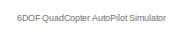
[diagram: root canvas - part 1/8, top center region]
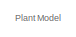
[diagram: root canvas - part 2/8, top right region]
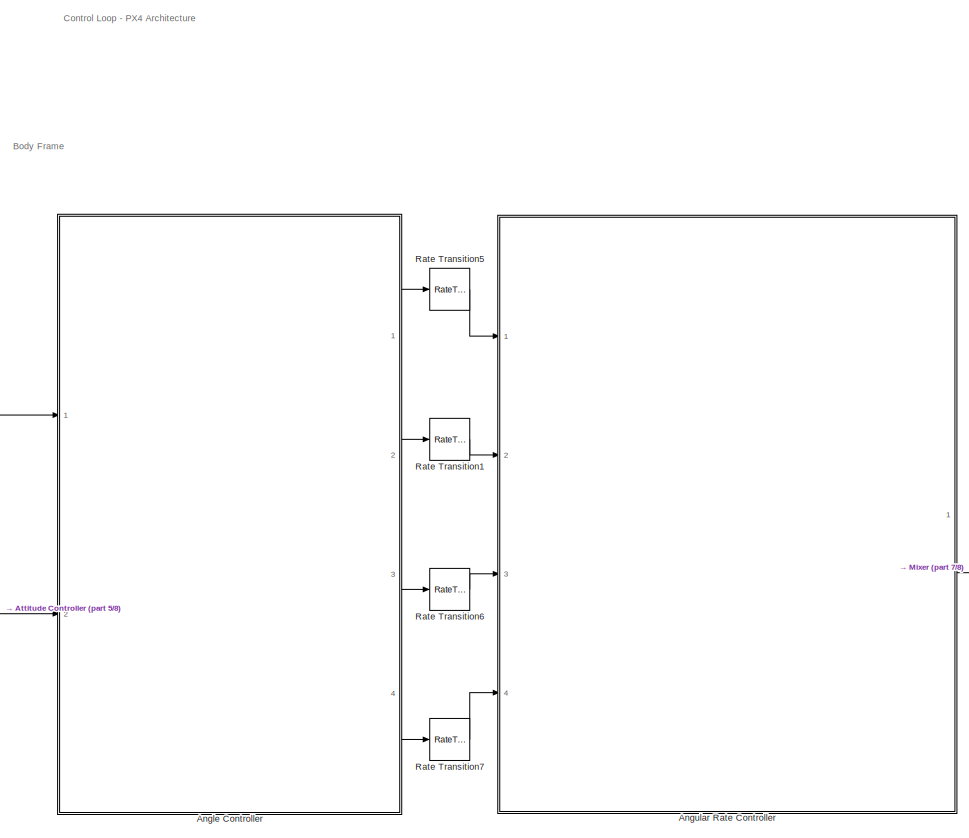
[diagram: root canvas - part 3/8, central region]
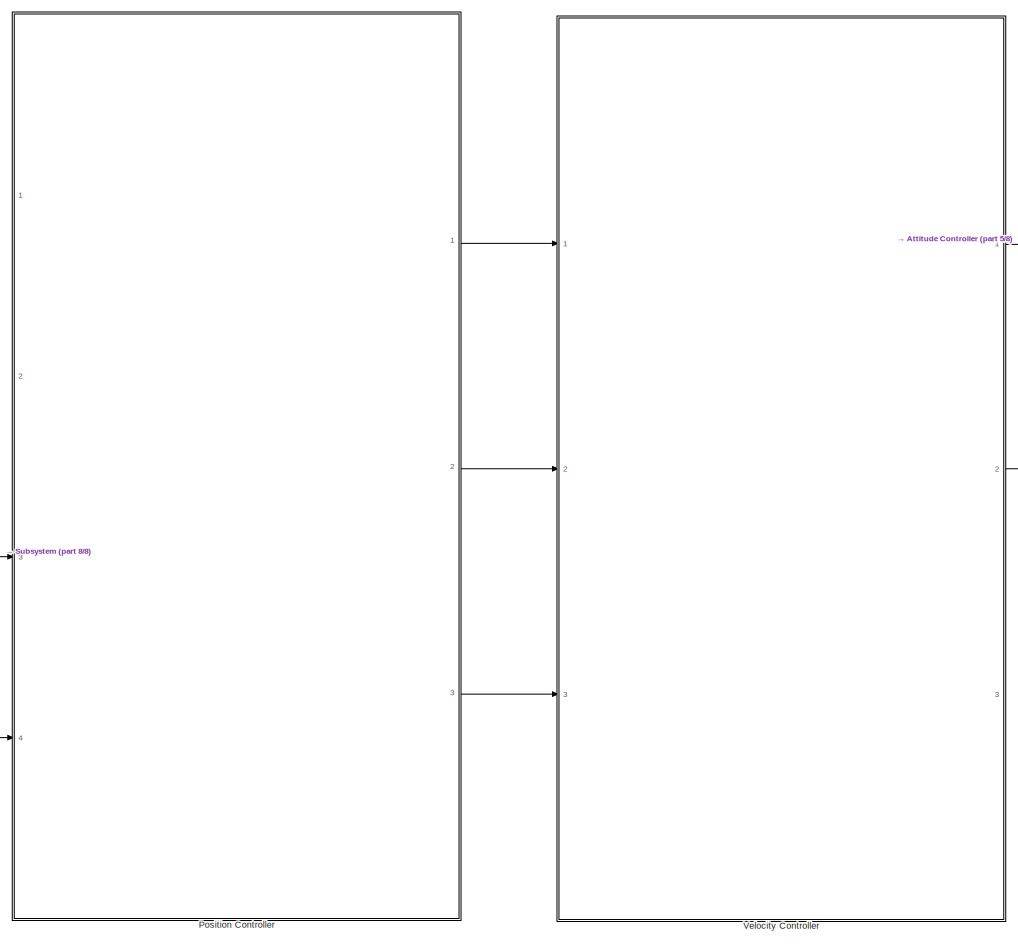
[diagram: root canvas - part 4/8, middle left region]
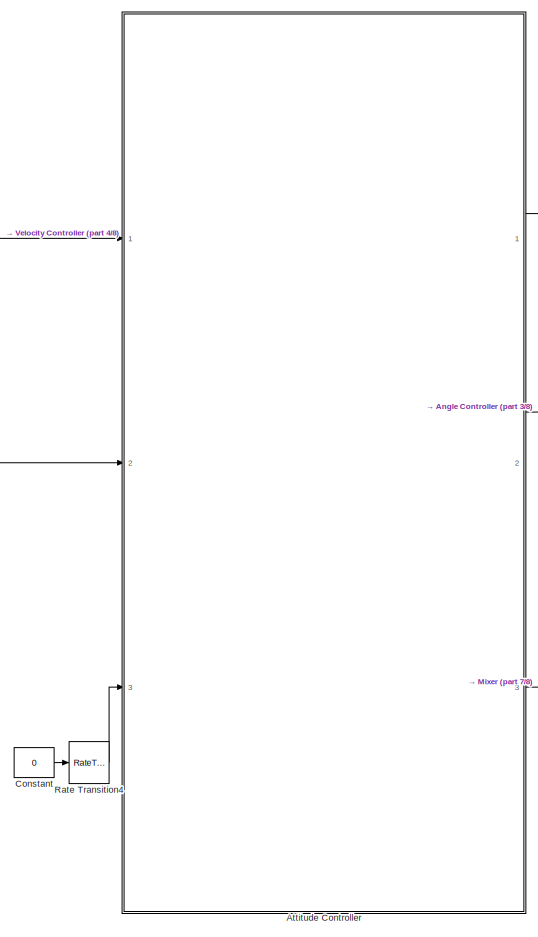
[diagram: root canvas - part 5/8, middle left region]
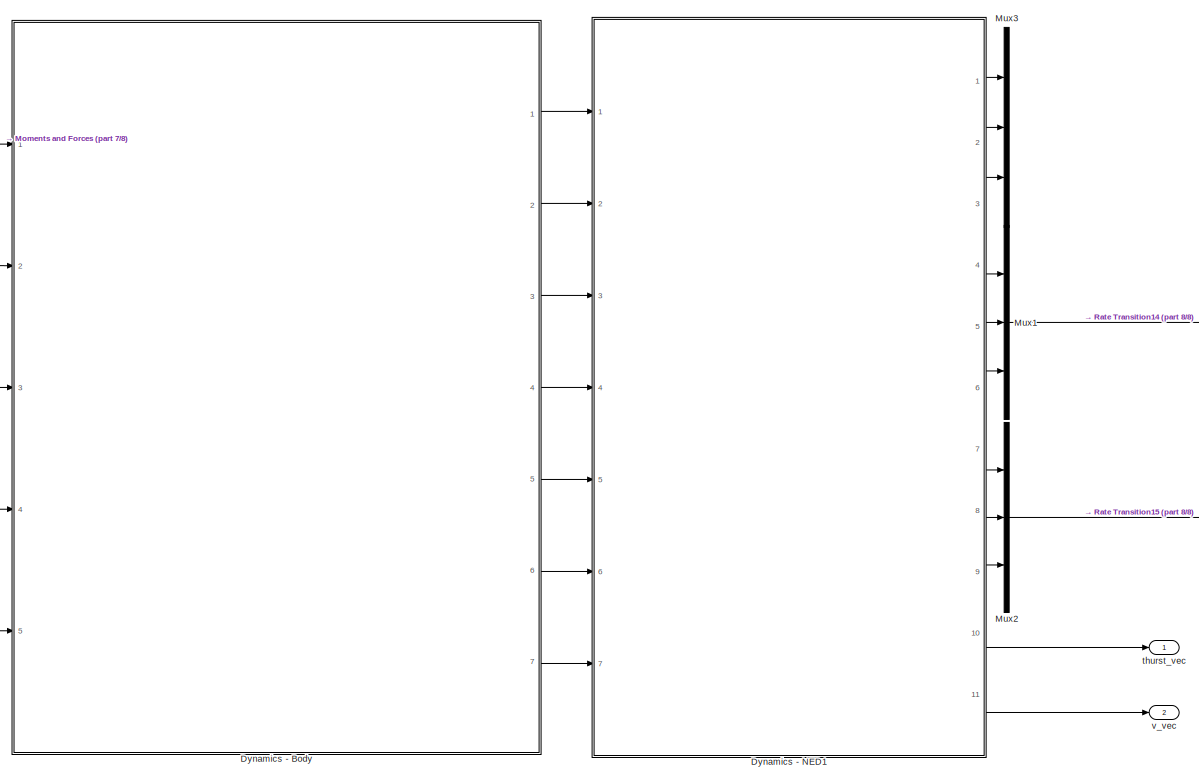
[diagram: root canvas - part 6/8, middle right region]
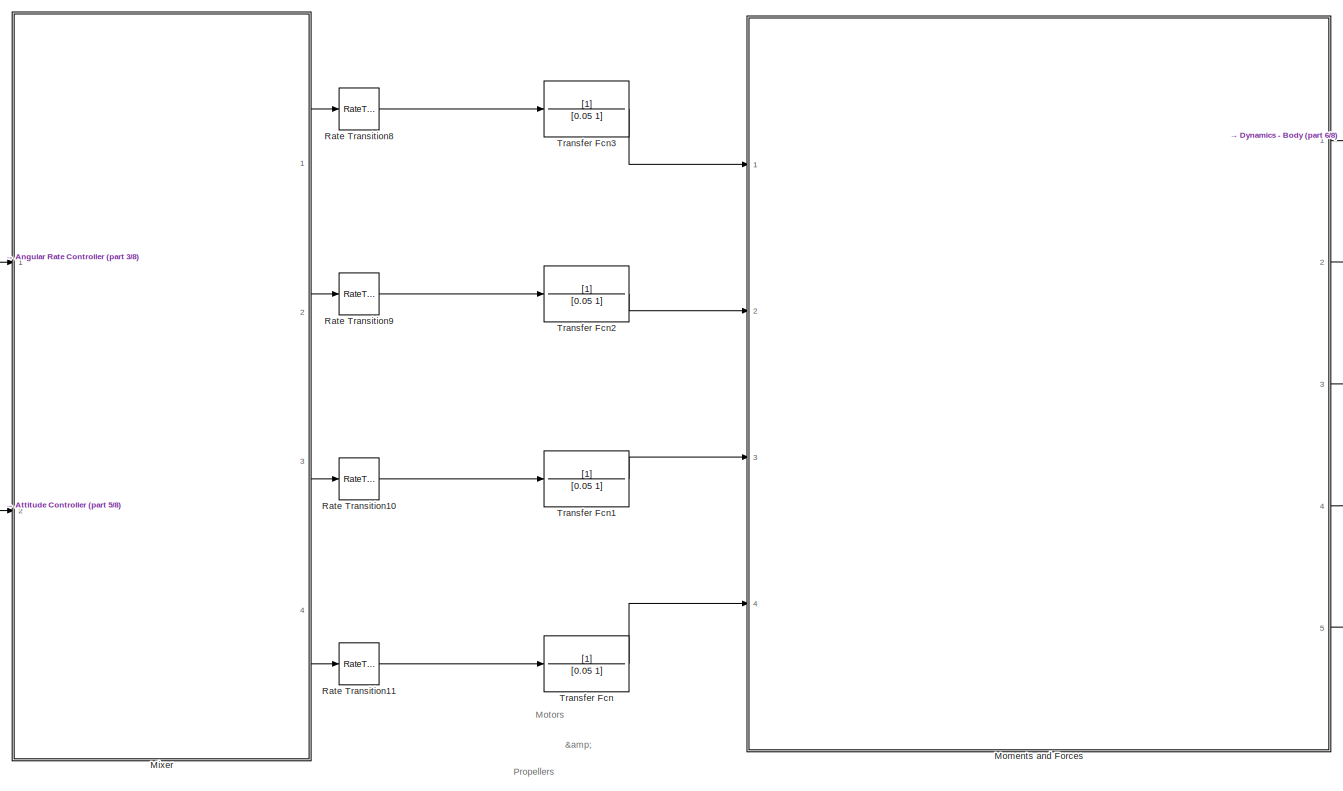
[diagram: root canvas - part 7/8, central region]
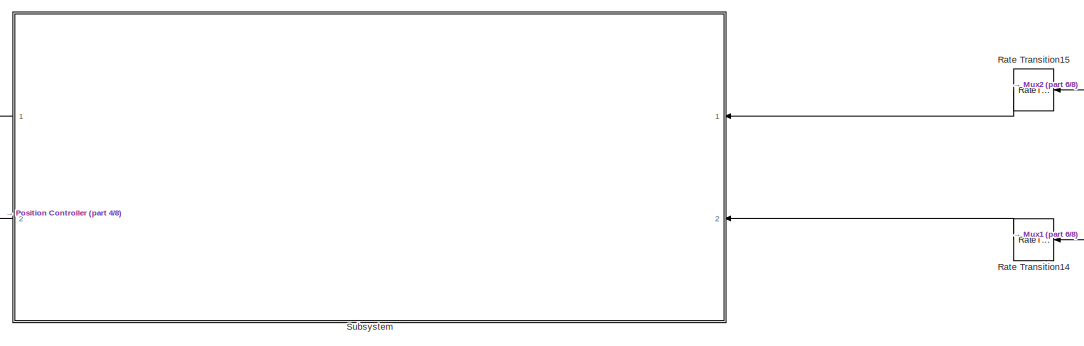
[diagram: root canvas - part 8/8, bottom center region]
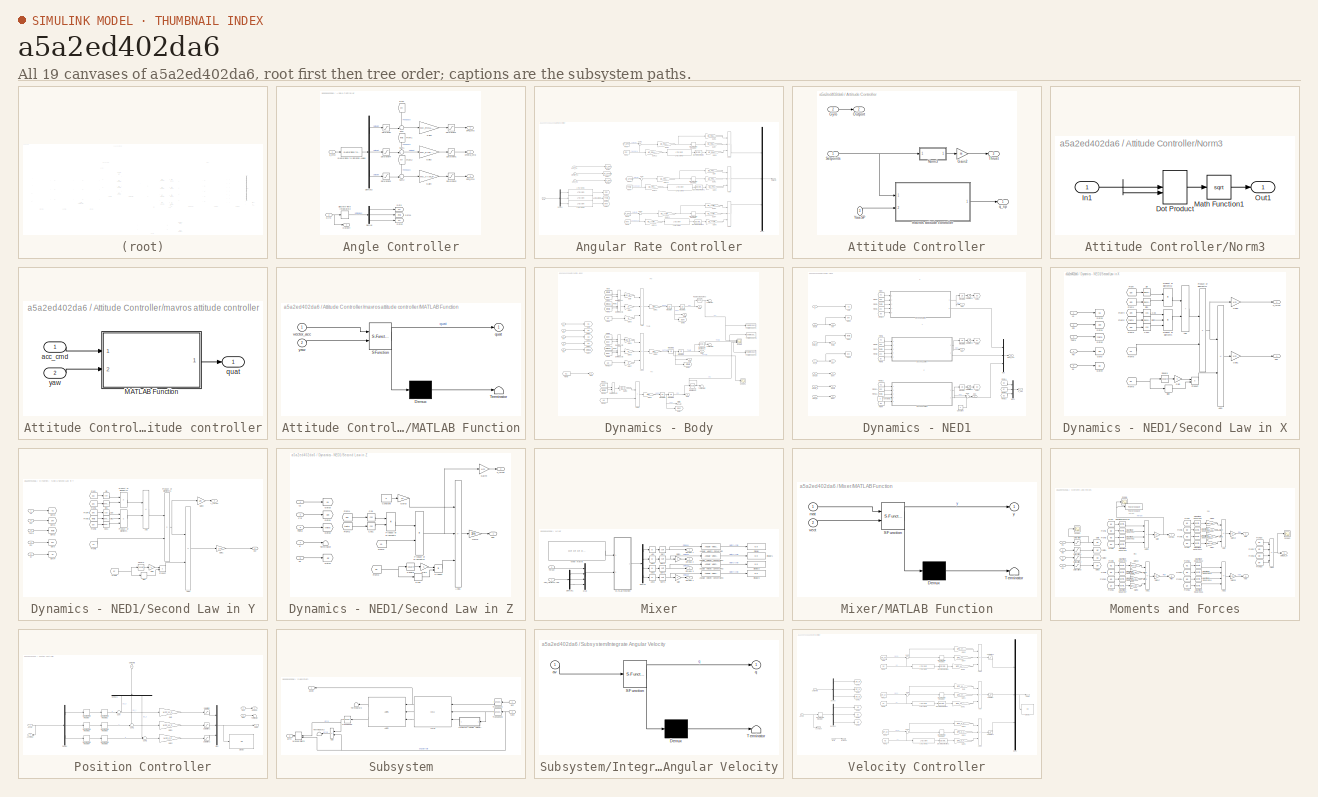
[diagram: thumbnail index - all 19 canvases of the model, root first then tree order]
MODEL slx_a5a2ed402da6
KIND model
CONFIG AbsTol = auto
CONFIG EnableMultiTasking = off
CONFIG FixedStep = auto
CONFIG MaxStep = auto
CONFIG MinStep = auto
CONFIG RelTol = 1e-3
CONFIG SampleTimeConstraint = Unconstrained
CONFIG SolverName = VariableStepAuto
CONFIG StartTime = 0.0
CONFIG StopTime = 10.0
BLOCK [SubSystem] Angle Controller
  Ports = [2, 4]
  RequestExecContextInheritance = off
BLOCK [Demux] Angle Controller/Demux
  Outputs = 3
  Ports = [1, 3]
BLOCK [Demux] Angle Controller/Demux3
  Outputs = 3
  Ports = [1, 3]
BLOCK [DiscreteIntegrator] Angle Controller/Discrete-Time Integrator2
  ICPrevOutput = DiscIntNeverNeededParam
  ICPrevScaledInput = DiscIntNeverNeededParam
  InitialCondition = [0.001;0.001;0.001]
  InitialConditionSetting = Auto
  Ports = [1, 1]
  SampleTime = -1
BLOCK [From] Angle Controller/From
  GotoTag = phi
  NameLocation = left
BLOCK [From] Angle Controller/From1
  GotoTag = theta
  NameLocation = left
BLOCK [From] Angle Controller/From2
  GotoTag = psi
  NameLocation = left
BLOCK [Gain] Angle Controller/Gain1
  Gain = MC_ROLL_P
BLOCK [Gain] Angle Controller/Gain3
  Gain = MC_PITCH_P
BLOCK [Gain] Angle Controller/Gain4
  Gain = MC_YAW_P
BLOCK [Goto] Angle Controller/Goto
  GotoTag = phi
BLOCK [Goto] Angle Controller/Goto1
  GotoTag = theta
BLOCK [Goto] Angle Controller/Goto2
  GotoTag = psi
BLOCK [Inport] Angle Controller/Gyro
  Port = 2
BLOCK [Outport] Angle Controller/Outport
  Port = 4
BLOCK [Reference] Angle Controller/Quaternions to Rotation Angles  REF=sharedtransform/Quaternions to Rotation Angles
  AttributesFormatString = Rotation Order: %<rotationOrder>
  Ports = [1, 1]
  SourceBlock = sharedtransform/Quaternions to Rotation Angles
  SourceProductBaseCode = AE,PW,DR,MT,UV,VE
  SourceType = Quat2Ang
BLOCK [Saturate] Angle Controller/Saturation
  LowerLimit = -1.5
  UpperLimit = 1.5
BLOCK [Saturate] Angle Controller/Saturation1
  LowerLimit = -MC_PITCHRATE_MAX
  UpperLimit = MC_PITCHRATE_MAX
BLOCK [Saturate] Angle Controller/Saturation2
  LowerLimit = -MC_YAWRATE_MAX
  UpperLimit = MC_YAWRATE_MAX
BLOCK [Saturate] Angle Controller/Saturation3
  LowerLimit = -MC_ROLLRATE_MAX
  UpperLimit = MC_ROLLRATE_MAX
BLOCK [Saturate] Angle Controller/Saturation4
  LowerLimit = -1.5
  UpperLimit = 1.5
BLOCK [Saturate] Angle Controller/Saturation5
  LowerLimit = -1.5
  UpperLimit = 1.5
BLOCK [Sum] Angle Controller/Sum
  Inputs = -+|
  Ports = [2, 1]
BLOCK [Sum] Angle Controller/Sum1
  Inputs = -+|
  Ports = [2, 1]
BLOCK [Sum] Angle Controller/Sum2
  Inputs = -+|
  Ports = [2, 1]
BLOCK [Outport] Angle Controller/dPhi_cmd
BLOCK [Outport] Angle Controller/dPsi_cmd
  Port = 3
BLOCK [Outport] Angle Controller/dTheta_cmd
  Port = 2
BLOCK [Inport] Angle Controller/q_cmd
BLOCK [SubSystem] Angular Rate Controller
  Ports = [4, 1]
  RequestExecContextInheritance = off
BLOCK [Sum] Angular Rate Controller/Add
  IconShape = rectangular
  Inputs = ++-
  Ports = [3, 1]
BLOCK [Sum] Angular Rate Controller/Add1
  IconShape = rectangular
  Inputs = ++-
  Ports = [3, 1]
BLOCK [Sum] Angular Rate Controller/Add2
  IconShape = rectangular
  Inputs = ++-
  Ports = [3, 1]
BLOCK [Outport] Angular Rate Controller/Delta S.P
BLOCK [Demux] Angular Rate Controller/Demux
  Outputs = 3
  Ports = [1, 3]
BLOCK [Reference] Angular Rate Controller/Discrete Derivative  REF=simulink/Discrete/Discrete Derivative
  Ports = [1, 1]
  SourceBlock = simulink/Discrete/Discrete Derivative
  SourceProductBaseCode = SL
  SourceType = Discrete Derivative
BLOCK [Reference] Angular Rate Controller/Discrete Derivative1  REF=simulink/Discrete/Discrete Derivative
  Ports = [1, 1]
  SourceBlock = simulink/Discrete/Discrete Derivative
  SourceProductBaseCode = SL
  SourceType = Discrete Derivative
BLOCK [Reference] Angular Rate Controller/Discrete Derivative2  REF=simulink/Discrete/Discrete Derivative
  Ports = [1, 1]
  SourceBlock = simulink/Discrete/Discrete Derivative
  SourceProductBaseCode = SL
  SourceType = Discrete Derivative
BLOCK [DiscreteIntegrator] Angular Rate Controller/Discrete-Time Integrator1
  ICPrevOutput = DiscIntNeverNeededParam
  ICPrevScaledInput = DiscIntNeverNeededParam
  InitialConditionSetting = Auto
  LimitOutput = on
  LowerSaturationLimit = -MC_RR_INT_LIM
  Ports = [1, 1]
  SampleTime = 1/1000
  UpperSaturationLimit = MC_RR_INT_LIM
BLOCK [DiscreteIntegrator] Angular Rate Controller/Discrete-Time Integrator2
  ICPrevOutput = DiscIntNeverNeededParam
  ICPrevScaledInput = DiscIntNeverNeededParam
  InitialConditionSetting = Auto
  LimitOutput = on
  LowerSaturationLimit = -MC_PR_INT_LIM
  Ports = [1, 1]
  SampleTime = 1/1000
  UpperSaturationLimit = MC_PR_INT_LIM
BLOCK [DiscreteIntegrator] Angular Rate Controller/Discrete-Time Integrator3
  ICPrevOutput = DiscIntNeverNeededParam
  ICPrevScaledInput = DiscIntNeverNeededParam
  InitialConditionSetting = Auto
  LimitOutput = on
  LowerSaturationLimit = -MC_YR_INT_LIM
  Ports = [1, 1]
  SampleTime = 1/1000
  UpperSaturationLimit = MC_YR_INT_LIM
BLOCK [From] Angular Rate Controller/From
  GotoTag = SP_dPhi
BLOCK [From] Angular Rate Controller/From1
  GotoTag = SP_dTheta
BLOCK [From] Angular Rate Controller/From2
  GotoTag = SP_dPsi
BLOCK [From] Angular Rate Controller/From3
  GotoTag = Phi
BLOCK [From] Angular Rate Controller/From4
  GotoTag = Theta
BLOCK [From] Angular Rate Controller/From5
  GotoTag = dPsi
BLOCK [Gain] Angular Rate Controller/Gain
  Gain = MC_PITCHRATE_P
BLOCK [Gain] Angular Rate Controller/Gain1
  Gain = MC_PITCHRATE_I
BLOCK [Gain] Angular Rate Controller/Gain10
  Gain = MC_PITCHRATE_K
BLOCK [Gain] Angular Rate Controller/Gain11
  Gain = MC_YAWRATE_K
BLOCK [Gain] Angular Rate Controller/Gain12
  Gain = MC_ROLLRATE_K
BLOCK [Gain] Angular Rate Controller/Gain13
  Gain = MC_YAWRATE_K
BLOCK [Gain] Angular Rate Controller/Gain14
  Gain = MC_PITCHRATE_K
BLOCK [Gain] Angular Rate Controller/Gain2
  Gain = MC_PITCHRATE_D
BLOCK [Gain] Angular Rate Controller/Gain3
  Gain = MC_YAWRATE_P
BLOCK [Gain] Angular Rate Controller/Gain4
  Gain = MC_YAWRATE_I
BLOCK [Gain] Angular Rate Controller/Gain5
  Gain = MC_YAWRATE_D
BLOCK [Gain] Angular Rate Controller/Gain6
  Gain = MC_ROLLRATE_P
BLOCK [Gain] Angular Rate Controller/Gain7
  Gain = MC_ROLLRATE_I
BLOCK [Gain] Angular Rate Controller/Gain8
  Gain = MC_ROLLRATE_D
BLOCK [Gain] Angular Rate Controller/Gain9
  Gain = MC_ROLLRATE_K
BLOCK [Goto] Angular Rate Controller/Goto1
  GotoTag = SP_dPsi
BLOCK [Goto] Angular Rate Controller/Goto2
  GotoTag = SP_dPhi
BLOCK [Goto] Angular Rate Controller/Goto3
  GotoTag = dPsi
BLOCK [Goto] Angular Rate Controller/Goto4
  GotoTag = SP_dTheta
BLOCK [Goto] Angular Rate Controller/Goto5
  GotoTag = Phi
BLOCK [Goto] Angular Rate Controller/Goto6
  GotoTag = Theta
BLOCK [Inport] Angular Rate Controller/Gyro
  Port = 4
BLOCK [Reference] Angular Rate Controller/LTI System2  REF=cstblocks/LTI System
  Ports = [1, 1]
  SourceBlock = cstblocks/LTI System
  SourceProductBaseCode = CT
  SourceType = LTI Block
BLOCK [Reference] Angular Rate Controller/LTI System3  REF=cstblocks/LTI System
  Ports = [1, 1]
  SourceBlock = cstblocks/LTI System
  SourceProductBaseCode = CT
  SourceType = LTI Block
BLOCK [Reference] Angular Rate Controller/LTI System4  REF=cstblocks/LTI System
  Ports = [1, 1]
  SourceBlock = cstblocks/LTI System
  SourceProductBaseCode = CT
  SourceType = LTI Block
BLOCK [Reference] Angular Rate Controller/LTI System5  REF=cstblocks/LTI System
  Ports = [1, 1]
  SourceBlock = cstblocks/LTI System
  SourceProductBaseCode = CT
  SourceType = LTI Block
BLOCK [Reference] Angular Rate Controller/LTI System6  REF=cstblocks/LTI System
  Ports = [1, 1]
  SourceBlock = cstblocks/LTI System
  SourceProductBaseCode = CT
  SourceType = LTI Block
BLOCK [Reference] Angular Rate Controller/LTI System7  REF=cstblocks/LTI System
  Ports = [1, 1]
  SourceBlock = cstblocks/LTI System
  SourceProductBaseCode = CT
  SourceType = LTI Block
BLOCK [Mux] Angular Rate Controller/Mux2
  DisplayOption = bar
  Inputs = 3
  Ports = [3, 1]
BLOCK [Sum] Angular Rate Controller/Sum
  Inputs = |+-
  Ports = [2, 1]
BLOCK [Sum] Angular Rate Controller/Sum1
  Inputs = |+-
  Ports = [2, 1]
BLOCK [Sum] Angular Rate Controller/Sum2
  Inputs = |+-
  Ports = [2, 1]
BLOCK [Inport] Angular Rate Controller/dphi_sp
BLOCK [Inport] Angular Rate Controller/dpsi_sp
  Port = 3
BLOCK [Inport] Angular Rate Controller/dtheta_sp
  Port = 2
BLOCK [SubSystem] Attitude Controller
  Ports = [3, 3]
  RequestExecContextInheritance = off
BLOCK [Gain] Attitude Controller/Gain2
  Gain = m
BLOCK [Inport] Attitude Controller/Gyro
  Port = 2
BLOCK [SubSystem] Attitude Controller/Norm3
  Ports = [1, 1]
  RequestExecContextInheritance = off
BLOCK [DotProduct] Attitude Controller/Norm3/Dot Product
  OutDataTypeStr = Inherit: Inherit via internal rule
BLOCK [Inport] Attitude Controller/Norm3/In1
BLOCK [Math] Attitude Controller/Norm3/Math Function1
  Operator = sqrt
  Ports = [1, 1]
  SignedPower = on
BLOCK [Outport] Attitude Controller/Norm3/Out1
  VectorParamsAs1DForOutWhenUnconnected = off
BLOCK [Outport] Attitude Controller/Outport
  Port = 2
BLOCK [Inport] Attitude Controller/Setpoints
BLOCK [Outport] Attitude Controller/Thrust
  Port = 3
BLOCK [Inport] Attitude Controller/Yaw.SP
  Port = 3
BLOCK [SubSystem] Attitude Controller/mavros attitude controller
  Ports = [2, 1]
  RequestExecContextInheritance = off
BLOCK [SubSystem] Attitude Controller/mavros attitude controller/MATLAB Function
  ErrorFcn = Stateflow.Translate.translate
  PermitHierarchicalResolution = ExplicitOnly
  Ports = [2, 1]
  RequestExecContextInheritance = off
  SFBlockType = MATLAB Function
  TreatAsAtomicUnit = on
BLOCK [Demux] Attitude Controller/mavros attitude controller/MATLAB Function/ Demux 
  Outputs = 1
  Ports = [1, 1]
BLOCK [S-Function] Attitude Controller/mavros attitude controller/MATLAB Function/ SFunction 
  EnableBusSupport = off
  FunctionName = sf_sfun
  PortCounts = [2 2]
  Ports = [2, 2]
  SFcnIsStateOwnerBlock = off
  SFunctionDeploymentMode = off
  Tag = Stateflow S-Function 3
BLOCK [Terminator] Attitude Controller/mavros attitude controller/MATLAB Function/ Terminator 
BLOCK [Outport] Attitude Controller/mavros attitude controller/MATLAB Function/quat
BLOCK [Inport] Attitude Controller/mavros attitude controller/MATLAB Function/vector_acc
BLOCK [Inport] Attitude Controller/mavros attitude controller/MATLAB Function/yaw
  Port = 2
BLOCK [Inport] Attitude Controller/mavros attitude controller/acc_cmd
BLOCK [Outport] Attitude Controller/mavros attitude controller/quat
BLOCK [Inport] Attitude Controller/mavros attitude controller/yaw
  Port = 2
BLOCK [Outport] Attitude Controller/q_sp
BLOCK [Constant] Constant
  Value = 0
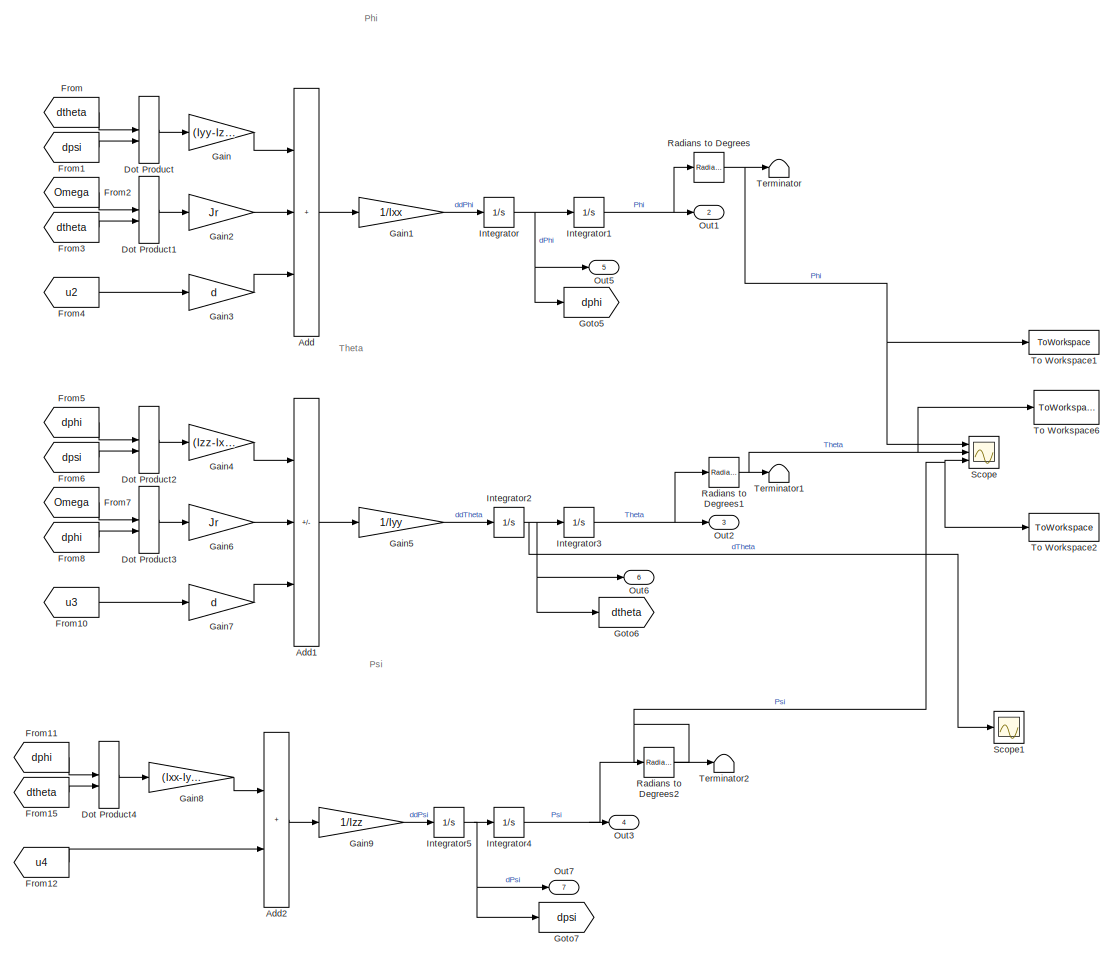
[diagram: Dynamics - Body - part 1/2, most of the canvas]
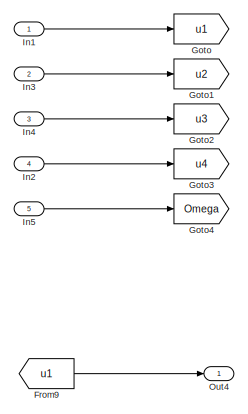
[diagram: Dynamics - Body - part 2/2, middle left region]
BLOCK [SubSystem] Dynamics - Body
  Ports = [5, 7]
  RequestExecContextInheritance = off
BLOCK [Sum] Dynamics - Body/Add
  IconShape = rectangular
  Inputs = 3
  Ports = [3, 1]
BLOCK [Sum] Dynamics - Body/Add1
  IconShape = rectangular
  Inputs = +-+
  Ports = [3, 1]
BLOCK [Sum] Dynamics - Body/Add2
  IconShape = rectangular
  Inputs = 2
  Ports = [2, 1]
BLOCK [DotProduct] Dynamics - Body/Dot Product
  OutDataTypeStr = Inherit: Inherit via internal rule
BLOCK [DotProduct] Dynamics - Body/Dot Product1
  OutDataTypeStr = Inherit: Inherit via internal rule
BLOCK [DotProduct] Dynamics - Body/Dot Product2
  OutDataTypeStr = Inherit: Inherit via internal rule
BLOCK [DotProduct] Dynamics - Body/Dot Product3
  OutDataTypeStr = Inherit: Inherit via internal rule
BLOCK [DotProduct] Dynamics - Body/Dot Product4
  OutDataTypeStr = Inherit: Inherit via internal rule
BLOCK [From] Dynamics - Body/From
  GotoTag = dtheta
BLOCK [From] Dynamics - Body/From1
  GotoTag = dpsi
BLOCK [From] Dynamics - Body/From10
  GotoTag = u3
BLOCK [From] Dynamics - Body/From11
  GotoTag = dphi
BLOCK [From] Dynamics - Body/From12
  GotoTag = u4
BLOCK [From] Dynamics - Body/From15
  GotoTag = dtheta
BLOCK [From] Dynamics - Body/From2
  GotoTag = Omega
BLOCK [From] Dynamics - Body/From3
  GotoTag = dtheta
BLOCK [From] Dynamics - Body/From4
  GotoTag = u2
BLOCK [From] Dynamics - Body/From5
  GotoTag = dphi
BLOCK [From] Dynamics - Body/From6
  GotoTag = dpsi
BLOCK [From] Dynamics - Body/From7
  GotoTag = Omega
BLOCK [From] Dynamics - Body/From8
  GotoTag = dphi
BLOCK [From] Dynamics - Body/From9
  GotoTag = u1
BLOCK [Gain] Dynamics - Body/Gain
  Gain = (Iyy-Izz)
BLOCK [Gain] Dynamics - Body/Gain1
  Gain = 1/Ixx
BLOCK [Gain] Dynamics - Body/Gain2
  Gain = Jr
BLOCK [Gain] Dynamics - Body/Gain3
  Gain = d
BLOCK [Gain] Dynamics - Body/Gain4
  Gain = (Izz-Ixx)
BLOCK [Gain] Dynamics - Body/Gain5
  Gain = 1/Iyy
BLOCK [Gain] Dynamics - Body/Gain6
  Gain = Jr
BLOCK [Gain] Dynamics - Body/Gain7
  Gain = d
BLOCK [Gain] Dynamics - Body/Gain8
  Gain = (Ixx-Iyy)
BLOCK [Gain] Dynamics - Body/Gain9
  Gain = 1/Izz
BLOCK [Goto] Dynamics - Body/Goto
  GotoTag = u1
BLOCK [Goto] Dynamics - Body/Goto1
  GotoTag = u2
BLOCK [Goto] Dynamics - Body/Goto2
  GotoTag = u3
BLOCK [Goto] Dynamics - Body/Goto3
  GotoTag = u4
BLOCK [Goto] Dynamics - Body/Goto4
  GotoTag = Omega
BLOCK [Goto] Dynamics - Body/Goto5
  GotoTag = dphi
BLOCK [Goto] Dynamics - Body/Goto6
  GotoTag = dtheta
BLOCK [Goto] Dynamics - Body/Goto7
  GotoTag = dpsi
BLOCK [Inport] Dynamics - Body/In1
BLOCK [Inport] Dynamics - Body/In2
  Port = 4
BLOCK [Inport] Dynamics - Body/In3
  Port = 2
BLOCK [Inport] Dynamics - Body/In4
  Port = 3
BLOCK [Inport] Dynamics - Body/In5
  Port = 5
BLOCK [Integrator] Dynamics - Body/Integrator
  Ports = [1, 1]
BLOCK [Integrator] Dynamics - Body/Integrator1
  Ports = [1, 1]
BLOCK [Integrator] Dynamics - Body/Integrator2
  Ports = [1, 1]
BLOCK [Integrator] Dynamics - Body/Integrator3
  Ports = [1, 1]
BLOCK [Integrator] Dynamics - Body/Integrator4
  Ports = [1, 1]
BLOCK [Integrator] Dynamics - Body/Integrator5
  Ports = [1, 1]
BLOCK [Outport] Dynamics - Body/Out1
  Port = 2
BLOCK [Outport] Dynamics - Body/Out2
  Port = 3
BLOCK [Outport] Dynamics - Body/Out3
  Port = 4
BLOCK [Outport] Dynamics - Body/Out4
BLOCK [Outport] Dynamics - Body/Out5
  Port = 5
BLOCK [Outport] Dynamics - Body/Out6
  Port = 6
BLOCK [Outport] Dynamics - Body/Out7
  Port = 7
BLOCK [Reference] Dynamics - Body/Radians to Degrees  REF=simulink_extras/Transformations/Radians
to Degrees
  Ports = [1, 1]
  SourceBlock = simulink_extras/Transformations/Radians\nto Degrees
  SourceProductBaseCode = SL
  SourceType = RadiansToDegrees
BLOCK [Reference] Dynamics - Body/Radians to Degrees1  REF=simulink_extras/Transformations/Radians
to Degrees
  Ports = [1, 1]
  SourceBlock = simulink_extras/Transformations/Radians\nto Degrees
  SourceProductBaseCode = SL
  SourceType = RadiansToDegrees
BLOCK [Reference] Dynamics - Body/Radians to Degrees2  REF=simulink_extras/Transformations/Radians
to Degrees
  Ports = [1, 1]
  SourceBlock = simulink_extras/Transformations/Radians\nto Degrees
  SourceProductBaseCode = SL
  SourceType = RadiansToDegrees
BLOCK [Scope] Dynamics - Body/Scope
  Floating = off
  NumInputPorts = 3
  Ports = [3]
  ScopeSpecificationString = Simulink.scopes.TimeScopeBlockCfg('CurrentConfiguration', extmgr.ConfigurationSet(extmgr.Configuration('Core','General UI',true),extmgr.Configuration('Core','Source UI',true),extmgr.Configuration('Sources','WiredSimulink',true,'DataLoggingVariableName','ScopeData2'),extmgr.Configuration('Visuals','Time Domain',true,'SerializedDisplays',{struct('MinYLimReal','-55.49778','MaxYLimReal','167.63774','Y...<+1468ch>
BLOCK [Scope] Dynamics - Body/Scope1
  Floating = off
  NumInputPorts = 1
  Ports = [1]
  ScopeSpecificationString = Simulink.scopes.TimeScopeBlockCfg('CurrentConfiguration', extmgr.ConfigurationSet(extmgr.Configuration('Core','General UI',true),extmgr.Configuration('Core','Source UI',true),extmgr.Configuration('Sources','WiredSimulink',true,'DataLoggingVariableName','ScopeData5'),extmgr.Configuration('Visuals','Time Domain',true,'SerializedDisplays',{struct('MinYLimReal','-1.37572','MaxYLimReal','2.75042','YLab...<+1365ch>
BLOCK [Terminator] Dynamics - Body/Terminator
BLOCK [Terminator] Dynamics - Body/Terminator1
BLOCK [Terminator] Dynamics - Body/Terminator2
BLOCK [ToWorkspace] Dynamics - Body/To Workspace1
  FixptAsFi = on
  MaxDataPoints = inf
  Ports = [1]
  SampleTime = -1
  VariableName = roll
BLOCK [ToWorkspace] Dynamics - Body/To Workspace2
  FixptAsFi = on
  MaxDataPoints = inf
  Ports = [1]
  SampleTime = -1
  VariableName = yaw
BLOCK [ToWorkspace] Dynamics - Body/To Workspace6
  FixptAsFi = on
  MaxDataPoints = inf
  Ports = [1]
  SampleTime = -1
  VariableName = pitch
BLOCK [SubSystem] Dynamics - NED1
  Ports = [7, 11]
  RequestExecContextInheritance = off
BLOCK [Constant] Dynamics - NED1/Constant
  Value = 0
BLOCK [Constant] Dynamics - NED1/Constant1
  SampleTime = -1
  Value = g
BLOCK [From] Dynamics - NED1/From
  GotoTag = u1
BLOCK [From] Dynamics - NED1/From1
  GotoTag = phi
BLOCK [From] Dynamics - NED1/From10
  GotoTag = u1
BLOCK [From] Dynamics - NED1/From11
  GotoTag = phi
BLOCK [From] Dynamics - NED1/From12
  GotoTag = theta
BLOCK [From] Dynamics - NED1/From13
  GotoTag = dx
BLOCK [From] Dynamics - NED1/From14
  GotoTag = dx
BLOCK [From] Dynamics - NED1/From15
  GotoTag = dy
BLOCK [From] Dynamics - NED1/From16
  GotoTag = dz
BLOCK [From] Dynamics - NED1/From2
  GotoTag = theta
BLOCK [From] Dynamics - NED1/From3
  GotoTag = psi
BLOCK [From] Dynamics - NED1/From4
  GotoTag = dz
BLOCK [From] Dynamics - NED1/From5
  GotoTag = u1
BLOCK [From] Dynamics - NED1/From6
  GotoTag = phi
BLOCK [From] Dynamics - NED1/From7
  GotoTag = theta
BLOCK [From] Dynamics - NED1/From8
  GotoTag = psi
BLOCK [From] Dynamics - NED1/From9
  GotoTag = dy
BLOCK [Goto] Dynamics - NED1/Goto
  GotoTag = u1
BLOCK [Goto] Dynamics - NED1/Goto1
  GotoTag = phi
BLOCK [Goto] Dynamics - NED1/Goto2
  GotoTag = theta
BLOCK [Goto] Dynamics - NED1/Goto3
  GotoTag = psi
BLOCK [Goto] Dynamics - NED1/Goto4
  GotoTag = dz
BLOCK [Goto] Dynamics - NED1/Goto5
  GotoTag = dy
BLOCK [Goto] Dynamics - NED1/Goto6
  GotoTag = dx
BLOCK [Integrator] Dynamics - NED1/Integrator
  Ports = [1, 1]
BLOCK [Integrator] Dynamics - NED1/Integrator1
  Ports = [1, 1]
BLOCK [Integrator] Dynamics - NED1/Integrator2
  Ports = [1, 1]
BLOCK [Mux] Dynamics - NED1/Mux
  DisplayOption = bar
  Inputs = 3
  Ports = [3, 1]
BLOCK [Mux] Dynamics - NED1/Mux1
  DisplayOption = bar
  Inputs = 3
  Ports = [3, 1]
BLOCK [Saturate] Dynamics - NED1/Saturation1
  LowerLimit = -50
  UpperLimit = 50
BLOCK [Saturate] Dynamics - NED1/Saturation2
  LowerLimit = -50
  UpperLimit = 50
BLOCK [Saturate] Dynamics - NED1/Saturation3
  LowerLimit = -50
  UpperLimit = 50
BLOCK [SubSystem] Dynamics - NED1/Second Law in X
  Ports = [5, 2]
  RequestExecContextInheritance = off
BLOCK [Sum] Dynamics - NED1/Second Law in X/Add
  IconShape = rectangular
  Ports = [2, 1]
BLOCK [Sum] Dynamics - NED1/Second Law in X/Add1
  IconShape = rectangular
  Inputs = +-
  Ports = [2, 1]
BLOCK [Trigonometry] Dynamics - NED1/Second Law in X/Cos
  Operator = cos
  Ports = [1, 1]
BLOCK [Trigonometry] Dynamics - NED1/Second Law in X/Cos1
  Operator = cos
  Ports = [1, 1]
BLOCK [From] Dynamics - NED1/Second Law in X/From
  GotoTag = psi
BLOCK [From] Dynamics - NED1/Second Law in X/From1
  GotoTag = phi
BLOCK [From] Dynamics - NED1/Second Law in X/From2
  GotoTag = theta
BLOCK [From] Dynamics - NED1/Second Law in X/From3
  GotoTag = psi
BLOCK [From] Dynamics - NED1/Second Law in X/From4
  GotoTag = phi
BLOCK [From] Dynamics - NED1/Second Law in X/From5
  GotoTag = u1
BLOCK [From] Dynamics - NED1/Second Law in X/From6
  GotoTag = dx
BLOCK [Gain] Dynamics - NED1/Second Law in X/Gain
  Gain = k
BLOCK [Gain] Dynamics - NED1/Second Law in X/Gain1
  Gain = 1/m
BLOCK [Gain] Dynamics - NED1/Second Law in X/Gain2
  Gain = 1/m
BLOCK [Goto] Dynamics - NED1/Second Law in X/Goto
  GotoTag = psi
BLOCK [Goto] Dynamics - NED1/Second Law in X/Goto1
  GotoTag = phi
BLOCK [Goto] Dynamics - NED1/Second Law in X/Goto2
  GotoTag = theta
BLOCK [Goto] Dynamics - NED1/Second Law in X/Goto3
  GotoTag = u1
BLOCK [Goto] Dynamics - NED1/Second Law in X/Goto4
  GotoTag = dx
BLOCK [Inport] Dynamics - NED1/Second Law in X/Phi
  Port = 2
BLOCK [Product] Dynamics - NED1/Second Law in X/Product
  Ports = [2, 1]
BLOCK [Product] Dynamics - NED1/Second Law in X/Product of Elements
  Inputs = 3
  Ports = [3, 1]
BLOCK [Product] Dynamics - NED1/Second Law in X/Product of Elements1
  Ports = [2, 1]
BLOCK [Product] Dynamics - NED1/Second Law in X/Product of Elements2
  Ports = [2, 1]
BLOCK [Inport] Dynamics - NED1/Second Law in X/Psi
  Port = 4
BLOCK [Signum] Dynamics - NED1/Second Law in X/Sign
BLOCK [Trigonometry] Dynamics - NED1/Second Law in X/Sin
  Ports = [1, 1]
BLOCK [Trigonometry] Dynamics - NED1/Second Law in X/Sin1
  Ports = [1, 1]
BLOCK [Trigonometry] Dynamics - NED1/Second Law in X/Sin2
  Ports = [1, 1]
BLOCK [Math] Dynamics - NED1/Second Law in X/Square
  Operator = square
  Ports = [1, 1]
BLOCK [Inport] Dynamics - NED1/Second Law in X/Theta
  Port = 3
BLOCK [Outport] Dynamics - NED1/Second Law in X/ddx
BLOCK [Inport] Dynamics - NED1/Second Law in X/dx
  Port = 5
BLOCK [Inport] Dynamics - NED1/Second Law in X/u1
BLOCK [Outport] Dynamics - NED1/Second Law in X/x_thrust
  Port = 2
BLOCK [SubSystem] Dynamics - NED1/Second Law in Y
  Ports = [5, 2]
  RequestExecContextInheritance = off
BLOCK [Sum] Dynamics - NED1/Second Law in Y/Add
  IconShape = rectangular
  Inputs = -+
  Ports = [2, 1]
BLOCK [Sum] Dynamics - NED1/Second Law in Y/Add1
  IconShape = rectangular
  Inputs = +-
  Ports = [2, 1]
BLOCK [Trigonometry] Dynamics - NED1/Second Law in Y/Cos
  Operator = cos
  Ports = [1, 1]
BLOCK [Trigonometry] Dynamics - NED1/Second Law in Y/Cos1
  Ports = [1, 1]
BLOCK [From] Dynamics - NED1/Second Law in Y/From
  GotoTag = psi
BLOCK [From] Dynamics - NED1/Second Law in Y/From1
  GotoTag = phi
BLOCK [From] Dynamics - NED1/Second Law in Y/From2
  GotoTag = theta
BLOCK [From] Dynamics - NED1/Second Law in Y/From3
  GotoTag = psi
BLOCK [From] Dynamics - NED1/Second Law in Y/From4
  GotoTag = phi
BLOCK [From] Dynamics - NED1/Second Law in Y/From5
  GotoTag = u1
BLOCK [From] Dynamics - NED1/Second Law in Y/From6
  GotoTag = dy
BLOCK [Gain] Dynamics - NED1/Second Law in Y/Gain
  Gain = k
BLOCK [Gain] Dynamics - NED1/Second Law in Y/Gain1
  Gain = 1/m
BLOCK [Gain] Dynamics - NED1/Second Law in Y/Gain2
  Gain = 1/m
BLOCK [Goto] Dynamics - NED1/Second Law in Y/Goto
  GotoTag = psi
BLOCK [Goto] Dynamics - NED1/Second Law in Y/Goto1
  GotoTag = phi
BLOCK [Goto] Dynamics - NED1/Second Law in Y/Goto2
  GotoTag = theta
BLOCK [Goto] Dynamics - NED1/Second Law in Y/Goto3
  GotoTag = u1
BLOCK [Goto] Dynamics - NED1/Second Law in Y/Goto4
  GotoTag = dy
BLOCK [Inport] Dynamics - NED1/Second Law in Y/Phi
  Port = 2
BLOCK [Product] Dynamics - NED1/Second Law in Y/Product
  Ports = [2, 1]
BLOCK [Product] Dynamics - NED1/Second Law in Y/Product of Elements
  Inputs = 3
  Ports = [3, 1]
BLOCK [Product] Dynamics - NED1/Second Law in Y/Product of Elements1
  Ports = [2, 1]
BLOCK [Product] Dynamics - NED1/Second Law in Y/Product of Elements2
  Ports = [2, 1]
BLOCK [Inport] Dynamics - NED1/Second Law in Y/Psi
  Port = 4
BLOCK [Signum] Dynamics - NED1/Second Law in Y/Sign
BLOCK [Trigonometry] Dynamics - NED1/Second Law in Y/Sin
  Operator = cos
  Ports = [1, 1]
BLOCK [Trigonometry] Dynamics - NED1/Second Law in Y/Sin1
  Ports = [1, 1]
BLOCK [Trigonometry] Dynamics - NED1/Second Law in Y/Sin2
  Ports = [1, 1]
BLOCK [Math] Dynamics - NED1/Second Law in Y/Square
  Operator = square
  Ports = [1, 1]
BLOCK [Inport] Dynamics - NED1/Second Law in Y/Theta
  Port = 3
BLOCK [Outport] Dynamics - NED1/Second Law in Y/ddy
BLOCK [Inport] Dynamics - NED1/Second Law in Y/dy
  Port = 5
BLOCK [Inport] Dynamics - NED1/Second Law in Y/u1
BLOCK [Outport] Dynamics - NED1/Second Law in Y/y_thrust
  Port = 2
BLOCK [SubSystem] Dynamics - NED1/Second Law in Z
  Ports = [5, 2]
  RequestExecContextInheritance = off
BLOCK [Sum] Dynamics - NED1/Second Law in Z/Add1
  IconShape = rectangular
  Inputs = -+-
  Ports = [3, 1]
BLOCK [Constant] Dynamics - NED1/Second Law in Z/Constant
  Value = 0
BLOCK [Trigonometry] Dynamics - NED1/Second Law in Z/Cos
  Operator = cos
  Ports = [1, 1]
BLOCK [Trigonometry] Dynamics - NED1/Second Law in Z/Cos1
  Operator = cos
  Ports = [1, 1]
BLOCK [From] Dynamics - NED1/Second Law in Z/From1
  GotoTag = phi
BLOCK [From] Dynamics - NED1/Second Law in Z/From2
  GotoTag = theta
BLOCK [From] Dynamics - NED1/Second Law in Z/From3
  GotoTag = dz
BLOCK [From] Dynamics - NED1/Second Law in Z/From5
  GotoTag = u1
BLOCK [Gain] Dynamics - NED1/Second Law in Z/Gain
  Gain = k
BLOCK [Gain] Dynamics - NED1/Second Law in Z/Gain1
  Gain = 1/m
BLOCK [Gain] Dynamics - NED1/Second Law in Z/Gain3
  Gain = m
BLOCK [Gain] Dynamics - NED1/Second Law in Z/Gain4
  Gain = 1/m
BLOCK [Goto] Dynamics - NED1/Second Law in Z/Goto1
  GotoTag = phi
BLOCK [Goto] Dynamics - NED1/Second Law in Z/Goto2
  GotoTag = theta
BLOCK [Goto] Dynamics - NED1/Second Law in Z/Goto3
  GotoTag = u1
BLOCK [Goto] Dynamics - NED1/Second Law in Z/Goto4
  GotoTag = dz
BLOCK [Inport] Dynamics - NED1/Second Law in Z/Phi
  Port = 2
BLOCK [Product] Dynamics - NED1/Second Law in Z/Product
  Ports = [2, 1]
BLOCK [Product] Dynamics - NED1/Second Law in Z/Product of Elements
  Ports = [2, 1]
BLOCK [Product] Dynamics - NED1/Second Law in Z/Product of Elements1
  Ports = [2, 1]
BLOCK [Signum] Dynamics - NED1/Second Law in Z/Sign
BLOCK [Math] Dynamics - NED1/Second Law in Z/Square
  Operator = square
  Ports = [1, 1]
BLOCK [Terminator] Dynamics - NED1/Second Law in Z/Terminator
BLOCK [Inport] Dynamics - NED1/Second Law in Z/Theta
  Port = 3
BLOCK [Outport] Dynamics - NED1/Second Law in Z/ddz
BLOCK [Inport] Dynamics - NED1/Second Law in Z/dz
  Port = 5
BLOCK [Inport] Dynamics - NED1/Second Law in Z/g
  Port = 4
BLOCK [Inport] Dynamics - NED1/Second Law in Z/u1
BLOCK [Outport] Dynamics - NED1/Second Law in Z/z_thrust
  Port = 2
BLOCK [Sum] Dynamics - NED1/Sum
  Inputs = |++
  Ports = [2, 1]
BLOCK [Inport] Dynamics - NED1/T
BLOCK [Outport] Dynamics - NED1/ddx
  Port = 7
BLOCK [Outport] Dynamics - NED1/ddy
  Port = 8
BLOCK [Outport] Dynamics - NED1/ddz
  Port = 9
BLOCK [Outport] Dynamics - NED1/dphi
  Port = 4
BLOCK [Inport] Dynamics - NED1/dphi_in
  Port = 5
BLOCK [Outport] Dynamics - NED1/dpsi
  Port = 6
BLOCK [Inport] Dynamics - NED1/dpsi_in
  Port = 7
BLOCK [Outport] Dynamics - NED1/dtheta
  Port = 5
BLOCK [Inport] Dynamics - NED1/dtheta_in
  Port = 6
BLOCK [Outport] Dynamics - NED1/phi
BLOCK [Inport] Dynamics - NED1/phi_in
  Port = 2
BLOCK [Outport] Dynamics - NED1/psi
  Port = 3
BLOCK [Inport] Dynamics - NED1/psi_in
  Port = 4
BLOCK [Outport] Dynamics - NED1/theta
  Port = 2
BLOCK [Inport] Dynamics - NED1/theta_in
  Port = 3
BLOCK [Outport] Dynamics - NED1/thrust_vec
  Port = 10
BLOCK [Outport] Dynamics - NED1/v_vec
  Port = 11
BLOCK [SubSystem] Mixer
  Ports = [2, 4]
  RequestExecContextInheritance = off
BLOCK [Abs] Mixer/Abs
  SaturateOnIntegerOverflow = off
BLOCK [Abs] Mixer/Abs1
  SaturateOnIntegerOverflow = off
BLOCK [Abs] Mixer/Abs2
  SaturateOnIntegerOverflow = off
BLOCK [Abs] Mixer/Abs3
  SaturateOnIntegerOverflow = off
BLOCK [Reference] Mixer/Angular Velocity Conversion  REF=aerolibconvert2/Angular Velocity
Conversion
  Ports = [1, 1]
  SourceBlock = aerolibconvert2/Angular Velocity\nConversion
  SourceProductBaseCode = AE
  SourceType = Angular Velocity Conversion
BLOCK [Reference] Mixer/Angular Velocity Conversion1  REF=aerolibconvert2/Angular Velocity
Conversion
  Ports = [1, 1]
  SourceBlock = aerolibconvert2/Angular Velocity\nConversion
  SourceProductBaseCode = AE
  SourceType = Angular Velocity Conversion
BLOCK [Reference] Mixer/Angular Velocity Conversion2  REF=aerolibconvert2/Angular Velocity
Conversion
  Ports = [1, 1]
  SourceBlock = aerolibconvert2/Angular Velocity\nConversion
  SourceProductBaseCode = AE
  SourceType = Angular Velocity Conversion
BLOCK [Reference] Mixer/Angular Velocity Conversion3  REF=aerolibconvert2/Angular Velocity
Conversion
  Ports = [1, 1]
  SourceBlock = aerolibconvert2/Angular Velocity\nConversion
  SourceProductBaseCode = AE
  SourceType = Angular Velocity Conversion
BLOCK [Demux] Mixer/Demux
  Ports = [1, 4]
BLOCK [Demux] Mixer/Demux1
  Outputs = 3
  Ports = [1, 3]
BLOCK [Display] Mixer/Display
  Decimation = 1
  Ports = [1]
BLOCK [Display] Mixer/Display1
  Decimation = 1
  Ports = [1]
BLOCK [Display] Mixer/Display2
  Decimation = 1
  Ports = [1]
BLOCK [Display] Mixer/Display3
  Decimation = 1
  Ports = [1]
BLOCK [Gain] Mixer/Gain
  Gain = -1
BLOCK [Gain] Mixer/Gain1
  Gain = -1
BLOCK [SubSystem] Mixer/MATLAB Function
  ErrorFcn = Stateflow.Translate.translate
  PermitHierarchicalResolution = ExplicitOnly
  Ports = [2, 1]
  RequestExecContextInheritance = off
  SFBlockType = MATLAB Function
  TreatAsAtomicUnit = on
BLOCK [Demux] Mixer/MATLAB Function/ Demux 
  Outputs = 1
  Ports = [1, 1]
BLOCK [S-Function] Mixer/MATLAB Function/ SFunction 
  EnableBusSupport = off
  FunctionName = sf_sfun
  PortCounts = [2 2]
  Ports = [2, 2]
  SFcnIsStateOwnerBlock = off
  SFunctionDeploymentMode = off
  Tag = Stateflow S-Function 4
BLOCK [Terminator] Mixer/MATLAB Function/ Terminator 
BLOCK [Inport] Mixer/MATLAB Function/mat
BLOCK [Inport] Mixer/MATLAB Function/vect
  Port = 2
BLOCK [Outport] Mixer/MATLAB Function/y
BLOCK [Constant] Mixer/Mixer matrix
  NameLocation = top
  OutDataTypeStr = Inherit: Inherit via back propagation
  SampleTime = 1/1000
  StartFcn = %p = Simulink.Mask.get('ControlsModels/Moments and Forces');\n\nCt = 0.025\nCq = 2e-6;\n\n%Ct = p.getParameter('Ct');\n%Cq =p.getParameter('Cq');\n\n%Ct = str2double(Ct.Value);\n%Cq = str2double(Cq.Value);
  Value = [Ct Ct Ct Ct;Ct*sqrt(2)/2 -Ct*sqrt(2)/2 -Ct*sqrt(2)/2 Ct*sqrt(2)/2;Ct*sqrt(2)/2 Ct*sqrt(2)/2 -Ct*sqrt(2)/2 -Ct*sqrt(2)/2;Cq -Cq Cq -Cq]
BLOCK [Mux] Mixer/Mux
  DisplayOption = bar
  Ports = [4, 1]
BLOCK [Outport] Mixer/Omega 1
BLOCK [Outport] Mixer/Omega 2
  Port = 2
BLOCK [Outport] Mixer/Omega 3
  Port = 3
BLOCK [Outport] Mixer/Omega 4
  Port = 4
BLOCK [Sqrt] Mixer/Sqrt
BLOCK [Sqrt] Mixer/Sqrt1
BLOCK [Sqrt] Mixer/Sqrt2
BLOCK [Sqrt] Mixer/Sqrt3
BLOCK [Inport] Mixer/Tau_roll,pitch,yaw
BLOCK [Inport] Mixer/Thrust
  Port = 2
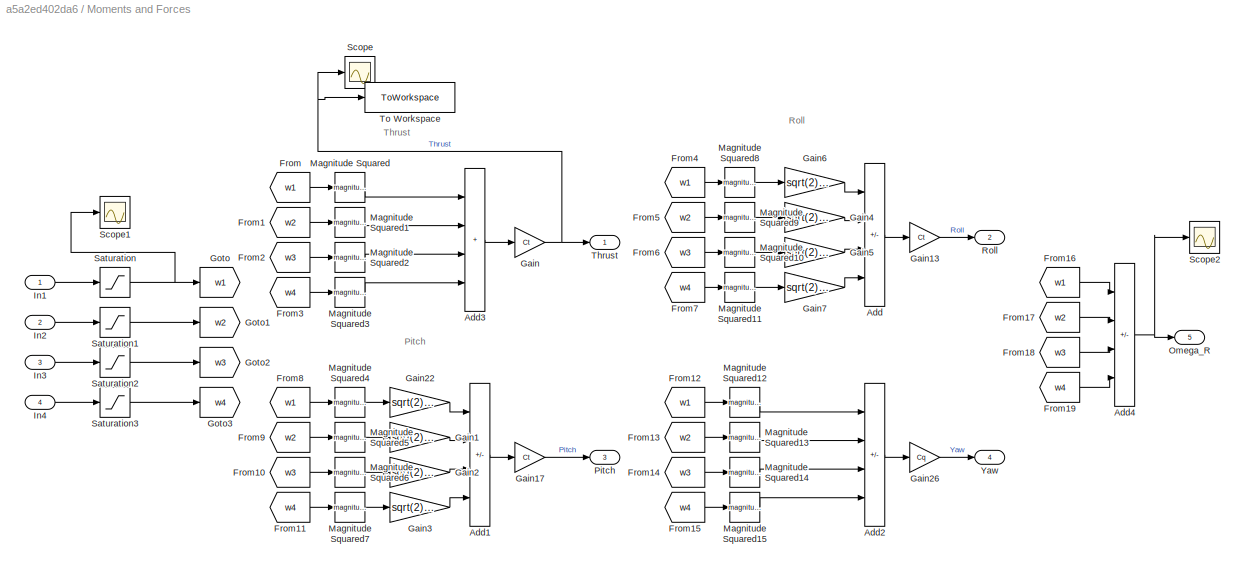
BLOCK [SubSystem] Moments and Forces
  Ports = [4, 5]
  RequestExecContextInheritance = off
BLOCK [Sum] Moments and Forces/Add
  IconShape = rectangular
  Inputs = +--+
  Ports = [4, 1]
BLOCK [Sum] Moments and Forces/Add1
  IconShape = rectangular
  Inputs = ++--
  Ports = [4, 1]
BLOCK [Sum] Moments and Forces/Add2
  IconShape = rectangular
  Inputs = +-+-
  Ports = [4, 1]
BLOCK [Sum] Moments and Forces/Add3
  IconShape = rectangular
  Inputs = 4
  Ports = [4, 1]
BLOCK [Sum] Moments and Forces/Add4
  IconShape = rectangular
  Inputs = +-+-
  Ports = [4, 1]
BLOCK [From] Moments and Forces/From
  GotoTag = w1
BLOCK [From] Moments and Forces/From1
  GotoTag = w2
BLOCK [From] Moments and Forces/From10
  GotoTag = w3
BLOCK [From] Moments and Forces/From11
  GotoTag = w4
BLOCK [From] Moments and Forces/From12
  GotoTag = w1
BLOCK [From] Moments and Forces/From13
  GotoTag = w2
BLOCK [From] Moments and Forces/From14
  GotoTag = w3
BLOCK [From] Moments and Forces/From15
  GotoTag = w4
BLOCK [From] Moments and Forces/From16
  GotoTag = w1
BLOCK [From] Moments and Forces/From17
  GotoTag = w2
BLOCK [From] Moments and Forces/From18
  GotoTag = w3
BLOCK [From] Moments and Forces/From19
  GotoTag = w4
BLOCK [From] Moments and Forces/From2
  GotoTag = w3
BLOCK [From] Moments and Forces/From3
  GotoTag = w4
BLOCK [From] Moments and Forces/From4
  GotoTag = w1
BLOCK [From] Moments and Forces/From5
  GotoTag = w2
BLOCK [From] Moments and Forces/From6
  GotoTag = w3
BLOCK [From] Moments and Forces/From7
  GotoTag = w4
BLOCK [From] Moments and Forces/From8
  GotoTag = w1
BLOCK [From] Moments and Forces/From9
  GotoTag = w2
BLOCK [Gain] Moments and Forces/Gain
  Gain = Ct
BLOCK [Gain] Moments and Forces/Gain1
  Gain = sqrt(2)/2
BLOCK [Gain] Moments and Forces/Gain13
  Gain = Ct
BLOCK [Gain] Moments and Forces/Gain17
  Gain = Ct
BLOCK [Gain] Moments and Forces/Gain2
  Gain = sqrt(2)/2
BLOCK [Gain] Moments and Forces/Gain22
  Gain = sqrt(2)/2
BLOCK [Gain] Moments and Forces/Gain26
  Gain = Cq
BLOCK [Gain] Moments and Forces/Gain3
  Gain = sqrt(2)/2
BLOCK [Gain] Moments and Forces/Gain4
  Gain = sqrt(2)/2
BLOCK [Gain] Moments and Forces/Gain5
  Gain = sqrt(2)/2
BLOCK [Gain] Moments and Forces/Gain6
  Gain = sqrt(2)/2
BLOCK [Gain] Moments and Forces/Gain7
  Gain = sqrt(2)/2
BLOCK [Goto] Moments and Forces/Goto
  GotoTag = w1
BLOCK [Goto] Moments and Forces/Goto1
  GotoTag = w2
BLOCK [Goto] Moments and Forces/Goto2
  GotoTag = w3
BLOCK [Goto] Moments and Forces/Goto3
  GotoTag = w4
BLOCK [Inport] Moments and Forces/In1
BLOCK [Inport] Moments and Forces/In2
  Port = 2
BLOCK [Inport] Moments and Forces/In3
  Port = 3
BLOCK [Inport] Moments and Forces/In4
  Port = 4
BLOCK [Math] Moments and Forces/Magnitude Squared
  Operator = magnitude^2
  Ports = [1, 1]
BLOCK [Math] Moments and Forces/Magnitude Squared1
  Operator = magnitude^2
  Ports = [1, 1]
BLOCK [Math] Moments and Forces/Magnitude Squared10
  Operator = magnitude^2
  Ports = [1, 1]
BLOCK [Math] Moments and Forces/Magnitude Squared11
  Operator = magnitude^2
  Ports = [1, 1]
BLOCK [Math] Moments and Forces/Magnitude Squared12
  Operator = magnitude^2
  Ports = [1, 1]
BLOCK [Math] Moments and Forces/Magnitude Squared13
  Operator = magnitude^2
  Ports = [1, 1]
BLOCK [Math] Moments and Forces/Magnitude Squared14
  Operator = magnitude^2
  Ports = [1, 1]
BLOCK [Math] Moments and Forces/Magnitude Squared15
  Operator = magnitude^2
  Ports = [1, 1]
BLOCK [Math] Moments and Forces/Magnitude Squared2
  Operator = magnitude^2
  Ports = [1, 1]
BLOCK [Math] Moments and Forces/Magnitude Squared3
  Operator = magnitude^2
  Ports = [1, 1]
BLOCK [Math] Moments and Forces/Magnitude Squared4
  Operator = magnitude^2
  Ports = [1, 1]
BLOCK [Math] Moments and Forces/Magnitude Squared5
  Operator = magnitude^2
  Ports = [1, 1]
BLOCK [Math] Moments and Forces/Magnitude Squared6
  Operator = magnitude^2
  Ports = [1, 1]
BLOCK [Math] Moments and Forces/Magnitude Squared7
  Operator = magnitude^2
  Ports = [1, 1]
BLOCK [Math] Moments and Forces/Magnitude Squared8
  Operator = magnitude^2
  Ports = [1, 1]
BLOCK [Math] Moments and Forces/Magnitude Squared9
  Operator = magnitude^2
  Ports = [1, 1]
BLOCK [Outport] Moments and Forces/Omega_R
  Port = 5
BLOCK [Outport] Moments and Forces/Pitch
  Port = 3
BLOCK [Outport] Moments and Forces/Roll
  Port = 2
BLOCK [Saturate] Moments and Forces/Saturation
  LowerLimit = -rpm_sat*(pi/30)
  UpperLimit = rpm_sat*(pi/30)
BLOCK [Saturate] Moments and Forces/Saturation1
  LowerLimit = -rpm_sat*(pi/30)
  UpperLimit = rpm_sat*(pi/30)
BLOCK [Saturate] Moments and Forces/Saturation2
  LowerLimit = -rpm_sat*(pi/30)
  UpperLimit = rpm_sat*(pi/30)
BLOCK [Saturate] Moments and Forces/Saturation3
  LowerLimit = -rpm_sat*(pi/30)
  UpperLimit = rpm_sat*(pi/30)
BLOCK [Scope] Moments and Forces/Scope
  Floating = off
  NumInputPorts = 1
  Ports = [1]
  ScopeSpecificationString = Simulink.scopes.TimeScopeBlockCfg('CurrentConfiguration', extmgr.ConfigurationSet(extmgr.Configuration('Core','General UI',true),extmgr.Configuration('Core','Source UI',true),extmgr.Configuration('Sources','WiredSimulink',true,'DataLoggingVariableName','ScopeData1'),extmgr.Configuration('Visuals','Time Domain',true,'SerializedDisplays',{struct('MinYLimReal','-5.625','MaxYLimReal','50.625','YLabelR...<+1404ch>
BLOCK [Scope] Moments and Forces/Scope1
  Floating = off
  NumInputPorts = 1
  Ports = [1]
  ScopeSpecificationString = Simulink.scopes.TimeScopeBlockCfg('CurrentConfiguration', extmgr.ConfigurationSet(extmgr.Configuration('Core','General UI',true),extmgr.Configuration('Core','Source UI',true),extmgr.Configuration('Sources','WiredSimulink',true,'DataLoggingVariableName','ScopeData3'),extmgr.Configuration('Visuals','Time Domain',true,'SerializedDisplays',{struct('MinYLimReal','-170.59461','MaxYLimReal','1535.35152',...<+1417ch>
BLOCK [Scope] Moments and Forces/Scope2
  Floating = off
  NumInputPorts = 1
  Ports = [1]
  ScopeSpecificationString = Simulink.scopes.TimeScopeBlockCfg('CurrentConfiguration', extmgr.ConfigurationSet(extmgr.Configuration('Core','General UI',true),extmgr.Configuration('Core','Source UI',true),extmgr.Configuration('Sources','WiredSimulink',true,'DataLoggingVariableName','ScopeData4'),extmgr.Configuration('Visuals','Time Domain',true,'SerializedDisplays',{struct('MinYLimReal','-448.21073','MaxYLimReal','4033.89656',...<+1411ch>
BLOCK [Outport] Moments and Forces/Thrust
BLOCK [ToWorkspace] Moments and Forces/To Workspace
  FixptAsFi = on
  MaxDataPoints = inf
  Ports = [1]
  SampleTime = -1
  SaveFormat = Timeseries
  VariableName = thrust
BLOCK [Outport] Moments and Forces/Yaw
  Port = 4
BLOCK [Mux] Mux1
  DisplayOption = bar
  Inputs = 3
  Ports = [3, 1]
BLOCK [Mux] Mux2
  DisplayOption = bar
  Inputs = 3
  Ports = [3, 1]
BLOCK [Mux] Mux3
  DisplayOption = bar
  Inputs = 3
  Ports = [3, 1]
BLOCK [SubSystem] Position Controller
  Ports = [4, 3]
  RequestExecContextInheritance = off
BLOCK [Inport] Position Controller/Accel
  Port = 4
BLOCK [Outport] Position Controller/Accel.out
  NameLocation = top
  Port = 3
BLOCK [Demux] Position Controller/Demux
  Outputs = 3
  Ports = [1, 3]
BLOCK [Demux] Position Controller/Demux1
  NameLocation = left
  Outputs = 3
  Ports = [1, 3]
BLOCK [DiscreteIntegrator] Position Controller/Discrete-Time Integrator
  ICPrevOutput = DiscIntNeverNeededParam
  ICPrevScaledInput = DiscIntNeverNeededParam
  InitialConditionSetting = Auto
  Ports = [1, 1]
  SampleTime = Tmech
BLOCK [DiscreteIntegrator] Position Controller/Discrete-Time Integrator1
  ICPrevOutput = DiscIntNeverNeededParam
  ICPrevScaledInput = DiscIntNeverNeededParam
  InitialConditionSetting = Auto
  Ports = [1, 1]
  SampleTime = -1
BLOCK [DiscreteIntegrator] Position Controller/Discrete-Time Integrator2
  ICPrevOutput = DiscIntNeverNeededParam
  ICPrevScaledInput = DiscIntNeverNeededParam
  InitialConditionSetting = Auto
  Ports = [1, 1]
  SampleTime = Tmech
BLOCK [DiscreteIntegrator] Position Controller/Discrete-Time Integrator3
  ICPrevOutput = DiscIntNeverNeededParam
  ICPrevScaledInput = DiscIntNeverNeededParam
  InitialConditionSetting = Auto
  Ports = [1, 1]
  SampleTime = -1
BLOCK [DiscreteIntegrator] Position Controller/Discrete-Time Integrator4
  ICPrevOutput = DiscIntNeverNeededParam
  ICPrevScaledInput = DiscIntNeverNeededParam
  InitialConditionSetting = Auto
  LimitOutput = on
  Ports = [1, 1]
  SampleTime = Tmech
  UpperSaturationLimit = 1
BLOCK [DiscreteIntegrator] Position Controller/Discrete-Time Integrator5
  ICPrevOutput = DiscIntNeverNeededParam
  ICPrevScaledInput = DiscIntNeverNeededParam
  InitialConditionSetting = Auto
  LimitOutput = on
  Ports = [1, 1]
  SampleTime = -1
  UpperSaturationLimit = 0
BLOCK [Display] Position Controller/Display
  Decimation = 1
  Ports = [1]
BLOCK [Gain] Position Controller/Gain
  Gain = MPC_XY_P
BLOCK [Gain] Position Controller/Gain1
  Gain = MPC_XY_P
BLOCK [Gain] Position Controller/Gain2
  Gain = MPC_Z_P
BLOCK [Inport] Position Controller/Gyro
  Port = 3
BLOCK [Outport] Position Controller/Gyro.out
  Port = 2
BLOCK [Inport] Position Controller/Mag
  Port = 2
BLOCK [Mux] Position Controller/Mux
  DisplayOption = bar
  Inputs = 3
  Ports = [3, 1]
BLOCK [Saturate] Position Controller/Saturation
  LowerLimit = -MPC_XY_VEL_MAX
  UpperLimit = MPC_XY_VEL_MAX
BLOCK [Saturate] Position Controller/Saturation1
  LowerLimit = -MPC_XY_VEL_MAX
  UpperLimit = MPC_XY_VEL_MAX
BLOCK [Saturate] Position Controller/Saturation2
  LowerLimit = MPC_Z_VEL_MAX_DOWN
  UpperLimit = MPC_Z_VEL_MAX_UP
BLOCK [Inport] Position Controller/Setpoints
  NameLocation = left
BLOCK [Sum] Position Controller/Sum
  Inputs = +-|
  Ports = [2, 1]
BLOCK [Sum] Position Controller/Sum1
  Inputs = +-|
  Ports = [2, 1]
BLOCK [Sum] Position Controller/Sum2
  Inputs = +-|
  Ports = [2, 1]
BLOCK [Terminator] Position Controller/Terminator
BLOCK [Outport] Position Controller/Vel S.P
BLOCK [RateTransition] Rate Transition1
  OutPortSampleTime = 1/1000
BLOCK [RateTransition] Rate Transition10
  OutPortSampleTime = 1/10000
BLOCK [RateTransition] Rate Transition11
  OutPortSampleTime = 1/10000
BLOCK [RateTransition] Rate Transition14
  NameLocation = top
  OutPortSampleTime = 1/250
BLOCK [RateTransition] Rate Transition15
  NameLocation = top
  OutPortSampleTime = 1/250
BLOCK [RateTransition] Rate Transition4
  OutPortSampleTime = 1/ 250
BLOCK [RateTransition] Rate Transition5
  OutPortSampleTime = 1/1000
BLOCK [RateTransition] Rate Transition6
  OutPortSampleTime = 1/1000
BLOCK [RateTransition] Rate Transition7
  OutPortSampleTime = 1/1000
BLOCK [RateTransition] Rate Transition8
  OutPortSampleTime = 1/10000
BLOCK [RateTransition] Rate Transition9
  OutPortSampleTime = 1/10000
BLOCK [SubSystem] Subsystem
  NameLocation = top
  Ports = [2, 2]
  RequestExecContextInheritance = off
BLOCK [Reference] Subsystem/AHRS  REF=mspfiltlib/AHRS
  NameLocation = top
  Ports = [3, 2]
  SourceBlock = mspfiltlib/AHRS
  SourceProductName = Sensor Fusion and Tracking Toolbox
  SourceType = fusion.simulink.ahrsfilter
BLOCK [Sum] Subsystem/Add
  IconShape = rectangular
  Inputs = +-
  NameLocation = top
  Ports = [2, 1]
BLOCK [Reference] Subsystem/IMU1  REF=mspsensorlib/IMU
  NameLocation = top
  Ports = [3, 3]
  SourceBlock = mspsensorlib/IMU
  SourceProductName = Sensor Fusion and Tracking Toolbox
  SourceType = fusion.simulink.imuSensor
BLOCK [SubSystem] Subsystem/Integrate Angular Velocity
  ErrorFcn = Stateflow.Translate.translate
  NameLocation = top
  PermitHierarchicalResolution = ExplicitOnly
  Ports = [1, 1]
  RequestExecContextInheritance = off
  SFBlockType = MATLAB Function
  TreatAsAtomicUnit = on
BLOCK [Demux] Subsystem/Integrate Angular Velocity/ Demux 
  Outputs = 1
  Ports = [1, 1]
BLOCK [S-Function] Subsystem/Integrate Angular Velocity/ SFunction 
  EnableBusSupport = off
  FunctionName = sf_sfun
  Parameters = rate
  PortCounts = [1 2]
  Ports = [1, 2]
  SFcnIsStateOwnerBlock = off
  SFunctionDeploymentMode = off
  Tag = Stateflow S-Function 2
BLOCK [Terminator] Subsystem/Integrate Angular Velocity/ Terminator 
BLOCK [Inport] Subsystem/Integrate Angular Velocity/av
BLOCK [Outport] Subsystem/Integrate Angular Velocity/q
BLOCK [ManualSwitch] Subsystem/Manual Switch
  NameLocation = top
BLOCK [Terminator] Subsystem/Terminator2
  NameLocation = top
BLOCK [Terminator] Subsystem/Terminator3
  NameLocation = top
BLOCK [Math] Subsystem/Transpose3
  NameLocation = top
  Operator = transpose
  Ports = [1, 1]
BLOCK [Math] Subsystem/Transpose4
  NameLocation = top
  Operator = transpose
  Ports = [1, 1]
BLOCK [Math] Subsystem/Transpose5
  NameLocation = top
  Operator = transpose
  Ports = [1, 1]
BLOCK [Inport] Subsystem/acc
  NameLocation = top
BLOCK [Outport] Subsystem/accel
  NameLocation = top
BLOCK [Outport] Subsystem/gyro
  NameLocation = top
  Port = 2
BLOCK [Inport] Subsystem/rate
  NameLocation = top
  Port = 2
BLOCK [TransferFcn] Transfer Fcn
  Denominator = [0.05 1]
BLOCK [TransferFcn] Transfer Fcn1
  Denominator = [0.05 1]
BLOCK [TransferFcn] Transfer Fcn2
  Denominator = [0.05 1]
BLOCK [TransferFcn] Transfer Fcn3
  Denominator = [0.05 1]
BLOCK [SubSystem] Velocity Controller
  Ports = [3, 3]
  RequestExecContextInheritance = off
BLOCK [Inport] Velocity Controller/Accel
  Port = 3
BLOCK [Outport] Velocity Controller/Accel.out
  Port = 3
BLOCK [Sum] Velocity Controller/Add
  IconShape = rectangular
  Inputs = ++-
  Ports = [3, 1]
BLOCK [Sum] Velocity Controller/Add1
  IconShape = rectangular
  Inputs = ++-
  Ports = [3, 1]
BLOCK [Sum] Velocity Controller/Add2
  IconShape = rectangular
  Inputs = ++-
  Ports = [3, 1]
BLOCK [Demux] Velocity Controller/Demux
  Outputs = 3
  Ports = [1, 3]
BLOCK [Demux] Velocity Controller/Demux1
  Outputs = 3
  Ports = [1, 3]
BLOCK [Reference] Velocity Controller/Discrete Derivative  REF=simulink/Discrete/Discrete Derivative
  Ports = [1, 1]
  SourceBlock = simulink/Discrete/Discrete Derivative
  SourceProductBaseCode = SL
  SourceType = Discrete Derivative
BLOCK [Reference] Velocity Controller/Discrete Derivative1  REF=simulink/Discrete/Discrete Derivative
  Ports = [1, 1]
  SourceBlock = simulink/Discrete/Discrete Derivative
  SourceProductBaseCode = SL
  SourceType = Discrete Derivative
BLOCK [Reference] Velocity Controller/Discrete Derivative2  REF=simulink/Discrete/Discrete Derivative
  Ports = [1, 1]
  SourceBlock = simulink/Discrete/Discrete Derivative
  SourceProductBaseCode = SL
  SourceType = Discrete Derivative
BLOCK [DiscreteIntegrator] Velocity Controller/Discrete-Time Integrator
  ICPrevOutput = DiscIntNeverNeededParam
  ICPrevScaledInput = DiscIntNeverNeededParam
  InitialConditionSetting = Auto
  Ports = [1, 1]
  SampleTime = Tmech
BLOCK [DiscreteIntegrator] Velocity Controller/Discrete-Time Integrator1
  ICPrevOutput = DiscIntNeverNeededParam
  ICPrevScaledInput = DiscIntNeverNeededParam
  InitialConditionSetting = Auto
  Ports = [1, 1]
  SampleTime = Tmech
BLOCK [DiscreteIntegrator] Velocity Controller/Discrete-Time Integrator2
  ICPrevOutput = DiscIntNeverNeededParam
  ICPrevScaledInput = DiscIntNeverNeededParam
  InitialConditionSetting = Auto
  Ports = [1, 1]
  SampleTime = Tmech
BLOCK [DiscreteIntegrator] Velocity Controller/Discrete-Time Integrator3
  ICPrevOutput = DiscIntNeverNeededParam
  ICPrevScaledInput = DiscIntNeverNeededParam
  InitialConditionSetting = Auto
  Ports = [1, 1]
  SampleTime = Tmech
BLOCK [Display] Velocity Controller/Display
  Decimation = 1
  Ports = [1]
BLOCK [From] Velocity Controller/From
  GotoTag = SP_Vx
BLOCK [From] Velocity Controller/From1
  GotoTag = SP_Vy
BLOCK [From] Velocity Controller/From2
  GotoTag = Vz
BLOCK [From] Velocity Controller/From3
  GotoTag = SP_Vz
BLOCK [From] Velocity Controller/From4
  GotoTag = Vx
BLOCK [From] Velocity Controller/From5
  GotoTag = Vy
BLOCK [Gain] Velocity Controller/Gain
  Gain = MPC_XY_VEL_P_ACC
BLOCK [Gain] Velocity Controller/Gain1
  Gain = MPC_XY_VEL_I_ACC
BLOCK [Gain] Velocity Controller/Gain2
  Gain = MPC_XY_VEL_D_ACC
BLOCK [Gain] Velocity Controller/Gain3
  Gain = MPC_Z_VEL_P_ACC
BLOCK [Gain] Velocity Controller/Gain4
  Gain = MPC_Z_VEL_I_ACC
BLOCK [Gain] Velocity Controller/Gain5
  Gain = MPC_Z_VEL_D_ACC
BLOCK [Gain] Velocity Controller/Gain6
  Gain = MPC_XY_VEL_P_ACC
BLOCK [Gain] Velocity Controller/Gain7
  Gain = MPC_XY_VEL_I_ACC
BLOCK [Gain] Velocity Controller/Gain8
  Gain = MPC_XY_VEL_D_ACC
BLOCK [Goto] Velocity Controller/Goto1
  GotoTag = SP_Vz
BLOCK [Goto] Velocity Controller/Goto2
  GotoTag = SP_Vx
BLOCK [Goto] Velocity Controller/Goto3
  GotoTag = Vz
BLOCK [Goto] Velocity Controller/Goto4
  GotoTag = SP_Vy
BLOCK [Goto] Velocity Controller/Goto5
  GotoTag = Vx
BLOCK [Goto] Velocity Controller/Goto6
  GotoTag = Vy
BLOCK [Inport] Velocity Controller/Gyro
  Port = 2
BLOCK [Outport] Velocity Controller/Gyro.out
  Port = 2
BLOCK [Reference] Velocity Controller/LTI System  REF=cstblocks/LTI System
  Ports = [1, 1]
  SourceBlock = cstblocks/LTI System
  SourceProductBaseCode = CT
  SourceType = LTI Block
BLOCK [Reference] Velocity Controller/LTI System1  REF=cstblocks/LTI System
  Ports = [1, 1]
  SourceBlock = cstblocks/LTI System
  SourceProductBaseCode = CT
  SourceType = LTI Block
BLOCK [Reference] Velocity Controller/LTI System2  REF=cstblocks/LTI System
  Ports = [1, 1]
  SourceBlock = cstblocks/LTI System
  SourceProductBaseCode = CT
  SourceType = LTI Block
BLOCK [Mux] Velocity Controller/Mux2
  DisplayOption = bar
  Inputs = 3
  Ports = [3, 1]
BLOCK [Saturate] Velocity Controller/Saturation
  LowerLimit = -MPC_TILTMAX_AIR
  UpperLimit = MPC_TILTMAX_AIR
BLOCK [Saturate] Velocity Controller/Saturation1
  LowerLimit = 0
  UpperLimit = MPC_THR_MAX
BLOCK [Saturate] Velocity Controller/Saturation2
  LowerLimit = -MPC_TILTMAX_AIR
  UpperLimit = MPC_TILTMAX_AIR
BLOCK [Inport] Velocity Controller/Setpoints
BLOCK [Sum] Velocity Controller/Sum
  Inputs = |+-
  Ports = [2, 1]
BLOCK [Sum] Velocity Controller/Sum1
  Inputs = |+-
  Ports = [2, 1]
BLOCK [Sum] Velocity Controller/Sum2
  Inputs = |+-
  Ports = [2, 1]
BLOCK [Outport] Velocity Controller/Vel S.P
BLOCK [Outport] thurst_vec
BLOCK [Outport] v_vec
  Port = 2
ANNOTATION (root): Control Loop - PX4 Architecture
ANNOTATION (root): Plant Model
ANNOTATION (root): 6DOF QuadCopter AutoPilot Simulator
ANNOTATION (root): &
ANNOTATION (root): Motors
ANNOTATION (root): Propellers
ANNOTATION (root): Body Frame
ANNOTATION Dynamics - Body: Phi
ANNOTATION Dynamics - Body: Psi
ANNOTATION Dynamics - Body: Theta
ANNOTATION Dynamics - NED1: X
ANNOTATION Dynamics - NED1: Y
ANNOTATION Dynamics - NED1: Z
ANNOTATION Moments and Forces: Pitch
ANNOTATION Moments and Forces: Roll
ANNOTATION Moments and Forces: Thrust
LINE Angle Controller/Demux3:1 -> Angle Controller/Saturation:1
LINE Angle Controller/Demux3:2 -> Angle Controller/Saturation4:1
LINE Angle Controller/Demux3:3 -> Angle Controller/Saturation5:1
LINE Angle Controller/Demux:1 -> Angle Controller/Goto:1
LINE Angle Controller/Demux:2 -> Angle Controller/Goto1:1
LINE Angle Controller/Demux:3 -> Angle Controller/Goto2:1
LINE Angle Controller/Discrete-Time Integrator2:1 -> Angle Controller/Demux:1
LINE Angle Controller/From1:1 -> Angle Controller/Sum1:1
LINE Angle Controller/From2:1 -> Angle Controller/Sum2:1
LINE Angle Controller/From:1 -> Angle Controller/Sum:1
LINE Angle Controller/Gain1:1 -> Angle Controller/Saturation3:1
LINE Angle Controller/Gain3:1 -> Angle Controller/Saturation1:1
LINE Angle Controller/Gain4:1 -> Angle Controller/Saturation2:1
NET Angle Controller/Gyro:1 -> Angle Controller/Discrete-Time Integrator2:1, Angle Controller/Outport:1
LINE Angle Controller/Quaternions to Rotation Angles:1 -> Angle Controller/Demux3:1
LINE Angle Controller/Saturation1:1 -> Angle Controller/dTheta_cmd:1
LINE Angle Controller/Saturation2:1 -> Angle Controller/dPsi_cmd:1
LINE Angle Controller/Saturation3:1 -> Angle Controller/dPhi_cmd:1
LINE Angle Controller/Saturation4:1 -> Angle Controller/Sum1:2
LINE Angle Controller/Saturation5:1 -> Angle Controller/Sum2:2
LINE Angle Controller/Saturation:1 -> Angle Controller/Sum:2
LINE Angle Controller/Sum1:1 -> Angle Controller/Gain3:1
LINE Angle Controller/Sum2:1 -> Angle Controller/Gain4:1
LINE Angle Controller/Sum:1 -> Angle Controller/Gain1:1
LINE Angle Controller/q_cmd:1 -> Angle Controller/Quaternions to Rotation Angles:1
LINE Angle Controller:1 -> Rate Transition5:1
LINE Angle Controller:2 -> Rate Transition1:1
LINE Angle Controller:3 -> Rate Transition6:1
LINE Angle Controller:4 -> Rate Transition7:1
LINE Angular Rate Controller/Add1:1 -> Angular Rate Controller/Mux2:3
LINE Angular Rate Controller/Add2:1 -> Angular Rate Controller/Mux2:1
LINE Angular Rate Controller/Add:1 -> Angular Rate Controller/Mux2:2
LINE Angular Rate Controller/Demux:1 -> Angular Rate Controller/LTI System2:1
LINE Angular Rate Controller/Demux:2 -> Angular Rate Controller/LTI System3:1
LINE Angular Rate Controller/Demux:3 -> Angular Rate Controller/LTI System4:1
LINE Angular Rate Controller/Discrete Derivative1:1 -> Angular Rate Controller/Gain2:1
LINE Angular Rate Controller/Discrete Derivative2:1 -> Angular Rate Controller/Gain5:1
LINE Angular Rate Controller/Discrete Derivative:1 -> Angular Rate Controller/Gain8:1
LINE Angular Rate Controller/Discrete-Time Integrator1:1 -> Angular Rate Controller/Gain7:1
LINE Angular Rate Controller/Discrete-Time Integrator2:1 -> Angular Rate Controller/Gain1:1
LINE Angular Rate Controller/Discrete-Time Integrator3:1 -> Angular Rate Controller/Gain4:1
LINE Angular Rate Controller/From1:1 -> Angular Rate Controller/Sum:1
LINE Angular Rate Controller/From2:1 -> Angular Rate Controller/Sum1:1
NET Angular Rate Controller/From3:1 -> Angular Rate Controller/Gain12:1, Angular Rate Controller/Sum2:2
NET Angular Rate Controller/From4:1 -> Angular Rate Controller/Gain14:1, Angular Rate Controller/Sum:2
NET Angular Rate Controller/From5:1 -> Angular Rate Controller/Gain13:1, Angular Rate Controller/Sum1:2
LINE Angular Rate Controller/From:1 -> Angular Rate Controller/Sum2:1
NET Angular Rate Controller/Gain10:1 -> Angular Rate Controller/Discrete-Time Integrator2:1, Angular Rate Controller/Gain:1
NET Angular Rate Controller/Gain11:1 -> Angular Rate Controller/Discrete-Time Integrator3:1, Angular Rate Controller/Gain3:1
LINE Angular Rate Controller/Gain12:1 -> Angular Rate Controller/LTI System5:1
LINE Angular Rate Controller/Gain13:1 -> Angular Rate Controller/LTI System7:1
LINE Angular Rate Controller/Gain14:1 -> Angular Rate Controller/LTI System6:1
LINE Angular Rate Controller/Gain1:1 -> Angular Rate Controller/Add:2
LINE Angular Rate Controller/Gain2:1 -> Angular Rate Controller/Add:3
LINE Angular Rate Controller/Gain3:1 -> Angular Rate Controller/Add1:1
LINE Angular Rate Controller/Gain4:1 -> Angular Rate Controller/Add1:2
LINE Angular Rate Controller/Gain5:1 -> Angular Rate Controller/Add1:3
LINE Angular Rate Controller/Gain6:1 -> Angular Rate Controller/Add2:1
LINE Angular Rate Controller/Gain7:1 -> Angular Rate Controller/Add2:2
LINE Angular Rate Controller/Gain8:1 -> Angular Rate Controller/Add2:3
NET Angular Rate Controller/Gain9:1 -> Angular Rate Controller/Discrete-Time Integrator1:1, Angular Rate Controller/Gain6:1
LINE Angular Rate Controller/Gain:1 -> Angular Rate Controller/Add:1
LINE Angular Rate Controller/Gyro:1 -> Angular Rate Controller/Demux:1
LINE Angular Rate Controller/LTI System2:1 -> Angular Rate Controller/Goto5:1
LINE Angular Rate Controller/LTI System3:1 -> Angular Rate Controller/Goto6:1
LINE Angular Rate Controller/LTI System4:1 -> Angular Rate Controller/Goto3:1
LINE Angular Rate Controller/LTI System5:1 -> Angular Rate Controller/Discrete Derivative:1
LINE Angular Rate Controller/LTI System6:1 -> Angular Rate Controller/Discrete Derivative1:1
LINE Angular Rate Controller/LTI System7:1 -> Angular Rate Controller/Discrete Derivative2:1
LINE Angular Rate Controller/Mux2:1 -> Angular Rate Controller/Delta S.P:1
LINE Angular Rate Controller/Sum1:1 -> Angular Rate Controller/Gain11:1
LINE Angular Rate Controller/Sum2:1 -> Angular Rate Controller/Gain9:1
LINE Angular Rate Controller/Sum:1 -> Angular Rate Controller/Gain10:1
LINE Angular Rate Controller/dphi_sp:1 -> Angular Rate Controller/Goto2:1
LINE Angular Rate Controller/dpsi_sp:1 -> Angular Rate Controller/Goto1:1
LINE Angular Rate Controller/dtheta_sp:1 -> Angular Rate Controller/Goto4:1
LINE Angular Rate Controller:1 -> Mixer:1
LINE Attitude Controller/Gain2:1 -> Attitude Controller/Thrust:1
LINE Attitude Controller/Gyro:1 -> Attitude Controller/Outport:1
LINE Attitude Controller/Norm3/Dot Product:1 -> Attitude Controller/Norm3/Math Function1:1
NET Attitude Controller/Norm3/In1:1 -> Attitude Controller/Norm3/Dot Product:1, Attitude Controller/Norm3/Dot Product:2
LINE Attitude Controller/Norm3/Math Function1:1 -> Attitude Controller/Norm3/Out1:1
LINE Attitude Controller/Norm3:1 -> Attitude Controller/Gain2:1
NET Attitude Controller/Setpoints:1 -> Attitude Controller/Norm3:1, Attitude Controller/mavros attitude controller:1
LINE Attitude Controller/Yaw.SP:1 -> Attitude Controller/mavros attitude controller:2
LINE Attitude Controller/mavros attitude controller/MATLAB Function:1 -> Attitude Controller/mavros attitude controller/quat:1
LINE Attitude Controller/mavros attitude controller/acc_cmd:1 -> Attitude Controller/mavros attitude controller/MATLAB Function:1
LINE Attitude Controller/mavros attitude controller/yaw:1 -> Attitude Controller/mavros attitude controller/MATLAB Function:2
LINE Attitude Controller/mavros attitude controller:1 -> Attitude Controller/q_sp:1
LINE Attitude Controller:1 -> Angle Controller:1
LINE Attitude Controller:2 -> Angle Controller:2
LINE Attitude Controller:3 -> Mixer:2
LINE Constant:1 -> Rate Transition4:1
LINE Dynamics - Body/Add1:1 -> Dynamics - Body/Gain5:1
LINE Dynamics - Body/Add2:1 -> Dynamics - Body/Gain9:1
LINE Dynamics - Body/Add:1 -> Dynamics - Body/Gain1:1
LINE Dynamics - Body/Dot Product1:1 -> Dynamics - Body/Gain2:1
LINE Dynamics - Body/Dot Product2:1 -> Dynamics - Body/Gain4:1
LINE Dynamics - Body/Dot Product3:1 -> Dynamics - Body/Gain6:1
LINE Dynamics - Body/Dot Product4:1 -> Dynamics - Body/Gain8:1
LINE Dynamics - Body/Dot Product:1 -> Dynamics - Body/Gain:1
LINE Dynamics - Body/From10:1 -> Dynamics - Body/Gain7:1
LINE Dynamics - Body/From11:1 -> Dynamics - Body/Dot Product4:1
LINE Dynamics - Body/From12:1 -> Dynamics - Body/Add2:2
LINE Dynamics - Body/From15:1 -> Dynamics - Body/Dot Product4:2
LINE Dynamics - Body/From1:1 -> Dynamics - Body/Dot Product:2
LINE Dynamics - Body/From2:1 -> Dynamics - Body/Dot Product1:1
LINE Dynamics - Body/From3:1 -> Dynamics - Body/Dot Product1:2
LINE Dynamics - Body/From4:1 -> Dynamics - Body/Gain3:1
LINE Dynamics - Body/From5:1 -> Dynamics - Body/Dot Product2:1
LINE Dynamics - Body/From6:1 -> Dynamics - Body/Dot Product2:2
LINE Dynamics - Body/From7:1 -> Dynamics - Body/Dot Product3:1
LINE Dynamics - Body/From8:1 -> Dynamics - Body/Dot Product3:2
LINE Dynamics - Body/From9:1 -> Dynamics - Body/Out4:1
LINE Dynamics - Body/From:1 -> Dynamics - Body/Dot Product:1
LINE Dynamics - Body/Gain1:1 -> Dynamics - Body/Integrator:1
LINE Dynamics - Body/Gain2:1 -> Dynamics - Body/Add:2
LINE Dynamics - Body/Gain3:1 -> Dynamics - Body/Add:3
LINE Dynamics - Body/Gain4:1 -> Dynamics - Body/Add1:1
LINE Dynamics - Body/Gain5:1 -> Dynamics - Body/Integrator2:1
LINE Dynamics - Body/Gain6:1 -> Dynamics - Body/Add1:2
LINE Dynamics - Body/Gain7:1 -> Dynamics - Body/Add1:3
LINE Dynamics - Body/Gain8:1 -> Dynamics - Body/Add2:1
LINE Dynamics - Body/Gain9:1 -> Dynamics - Body/Integrator5:1
LINE Dynamics - Body/Gain:1 -> Dynamics - Body/Add:1
LINE Dynamics - Body/In1:1 -> Dynamics - Body/Goto:1
LINE Dynamics - Body/In2:1 -> Dynamics - Body/Goto3:1
LINE Dynamics - Body/In3:1 -> Dynamics - Body/Goto1:1
LINE Dynamics - Body/In4:1 -> Dynamics - Body/Goto2:1
LINE Dynamics - Body/In5:1 -> Dynamics - Body/Goto4:1
NET Dynamics - Body/Integrator1:1 -> Dynamics - Body/Out1:1, Dynamics - Body/Radians to Degrees:1
NET Dynamics - Body/Integrator2:1 -> Dynamics - Body/Goto6:1, Dynamics - Body/Integrator3:1, Dynamics - Body/Out6:1, Dynamics - Body/Scope1:1
NET Dynamics - Body/Integrator3:1 -> Dynamics - Body/Out2:1, Dynamics - Body/Radians to Degrees1:1
NET Dynamics - Body/Integrator4:1 -> Dynamics - Body/Out3:1, Dynamics - Body/Radians to Degrees2:1
NET Dynamics - Body/Integrator5:1 -> Dynamics - Body/Goto7:1, Dynamics - Body/Integrator4:1, Dynamics - Body/Out7:1
NET Dynamics - Body/Integrator:1 -> Dynamics - Body/Goto5:1, Dynamics - Body/Integrator1:1, Dynamics - Body/Out5:1
NET Dynamics - Body/Radians to Degrees1:1 -> Dynamics - Body/Scope:2, Dynamics - Body/Terminator1:1, Dynamics - Body/To Workspace6:1
NET Dynamics - Body/Radians to Degrees2:1 -> Dynamics - Body/Scope:3, Dynamics - Body/Terminator2:1, Dynamics - Body/To Workspace2:1
NET Dynamics - Body/Radians to Degrees:1 -> Dynamics - Body/Scope:1, Dynamics - Body/Terminator:1, Dynamics - Body/To Workspace1:1
LINE Dynamics - Body:1 -> Dynamics - NED1:1
LINE Dynamics - Body:2 -> Dynamics - NED1:2
LINE Dynamics - Body:3 -> Dynamics - NED1:3
LINE Dynamics - Body:4 -> Dynamics - NED1:4
LINE Dynamics - Body:5 -> Dynamics - NED1:5
LINE Dynamics - Body:6 -> Dynamics - NED1:6
LINE Dynamics - Body:7 -> Dynamics - NED1:7
LINE Dynamics - NED1/Constant1:1 -> Dynamics - NED1/Second Law in Z:4
LINE Dynamics - NED1/Constant:1 -> Dynamics - NED1/Sum:2
LINE Dynamics - NED1/From10:1 -> Dynamics - NED1/Second Law in Z:1
LINE Dynamics - NED1/From11:1 -> Dynamics - NED1/Second Law in Z:2
LINE Dynamics - NED1/From12:1 -> Dynamics - NED1/Second Law in Z:3
LINE Dynamics - NED1/From13:1 -> Dynamics - NED1/Second Law in X:5
LINE Dynamics - NED1/From14:1 -> Dynamics - NED1/Mux1:1
LINE Dynamics - NED1/From15:1 -> Dynamics - NED1/Mux1:2
LINE Dynamics - NED1/From16:1 -> Dynamics - NED1/Mux1:3
LINE Dynamics - NED1/From1:1 -> Dynamics - NED1/Second Law in X:2
LINE Dynamics - NED1/From2:1 -> Dynamics - NED1/Second Law in X:3
LINE Dynamics - NED1/From3:1 -> Dynamics - NED1/Second Law in X:4
LINE Dynamics - NED1/From4:1 -> Dynamics - NED1/Second Law in Z:5
LINE Dynamics - NED1/From5:1 -> Dynamics - NED1/Second Law in Y:1
LINE Dynamics - NED1/From6:1 -> Dynamics - NED1/Second Law in Y:2
LINE Dynamics - NED1/From7:1 -> Dynamics - NED1/Second Law in Y:3
LINE Dynamics - NED1/From8:1 -> Dynamics - NED1/Second Law in Y:4
LINE Dynamics - NED1/From9:1 -> Dynamics - NED1/Second Law in Y:5
LINE Dynamics - NED1/From:1 -> Dynamics - NED1/Second Law in X:1
LINE Dynamics - NED1/Integrator1:1 -> Dynamics - NED1/Saturation3:1
LINE Dynamics - NED1/Integrator2:1 -> Dynamics - NED1/Saturation1:1
LINE Dynamics - NED1/Integrator:1 -> Dynamics - NED1/Saturation2:1
LINE Dynamics - NED1/Mux1:1 -> Dynamics - NED1/v_vec:1
LINE Dynamics - NED1/Mux:1 -> Dynamics - NED1/thrust_vec:1
LINE Dynamics - NED1/Saturation1:1 -> Dynamics - NED1/Goto6:1
LINE Dynamics - NED1/Saturation2:1 -> Dynamics - NED1/Goto4:1
LINE Dynamics - NED1/Saturation3:1 -> Dynamics - NED1/Goto5:1
LINE Dynamics - NED1/Second Law in X/Add1:1 -> Dynamics - NED1/Second Law in X/Gain1:1
LINE Dynamics - NED1/Second Law in X/Add:1 -> Dynamics - NED1/Second Law in X/Product of Elements1:1
LINE Dynamics - NED1/Second Law in X/Cos1:1 -> Dynamics - NED1/Second Law in X/Product of Elements:3
LINE Dynamics - NED1/Second Law in X/Cos:1 -> Dynamics - NED1/Second Law in X/Product of Elements:1
LINE Dynamics - NED1/Second Law in X/From1:1 -> Dynamics - NED1/Second Law in X/Sin1:1
LINE Dynamics - NED1/Second Law in X/From2:1 -> Dynamics - NED1/Second Law in X/Sin2:1
LINE Dynamics - NED1/Second Law in X/From3:1 -> Dynamics - NED1/Second Law in X/Cos1:1
LINE Dynamics - NED1/Second Law in X/From4:1 -> Dynamics - NED1/Second Law in X/Cos:1
LINE Dynamics - NED1/Second Law in X/From5:1 -> Dynamics - NED1/Second Law in X/Product of Elements1:2
NET Dynamics - NED1/Second Law in X/From6:1 -> Dynamics - NED1/Second Law in X/Sign:1, Dynamics - NED1/Second Law in X/Square:1
LINE Dynamics - NED1/Second Law in X/From:1 -> Dynamics - NED1/Second Law in X/Sin:1
LINE Dynamics - NED1/Second Law in X/Gain1:1 -> Dynamics - NED1/Second Law in X/ddx:1
LINE Dynamics - NED1/Second Law in X/Gain2:1 -> Dynamics - NED1/Second Law in X/x_thrust:1
LINE Dynamics - NED1/Second Law in X/Gain:1 -> Dynamics - NED1/Second Law in X/Product:1
LINE Dynamics - NED1/Second Law in X/Phi:1 -> Dynamics - NED1/Second Law in X/Goto1:1
NET Dynamics - NED1/Second Law in X/Product of Elements1:1 -> Dynamics - NED1/Second Law in X/Add1:1, Dynamics - NED1/Second Law in X/Gain2:1
LINE Dynamics - NED1/Second Law in X/Product of Elements2:1 -> Dynamics - NED1/Second Law in X/Add:1
LINE Dynamics - NED1/Second Law in X/Product of Elements:1 -> Dynamics - NED1/Second Law in X/Add:2
LINE Dynamics - NED1/Second Law in X/Product:1 -> Dynamics - NED1/Second Law in X/Add1:2
LINE Dynamics - NED1/Second Law in X/Psi:1 -> Dynamics - NED1/Second Law in X/Goto:1
LINE Dynamics - NED1/Second Law in X/Sign:1 -> Dynamics - NED1/Second Law in X/Product:2
LINE Dynamics - NED1/Second Law in X/Sin1:1 -> Dynamics - NED1/Second Law in X/Product of Elements2:2
LINE Dynamics - NED1/Second Law in X/Sin2:1 -> Dynamics - NED1/Second Law in X/Product of Elements:2
LINE Dynamics - NED1/Second Law in X/Sin:1 -> Dynamics - NED1/Second Law in X/Product of Elements2:1
LINE Dynamics - NED1/Second Law in X/Square:1 -> Dynamics - NED1/Second Law in X/Gain:1
LINE Dynamics - NED1/Second Law in X/Theta:1 -> Dynamics - NED1/Second Law in X/Goto2:1
LINE Dynamics - NED1/Second Law in X/dx:1 -> Dynamics - NED1/Second Law in X/Goto4:1
LINE Dynamics - NED1/Second Law in X/u1:1 -> Dynamics - NED1/Second Law in X/Goto3:1
NET Dynamics - NED1/Second Law in X:1 -> Dynamics - NED1/Integrator2:1, Dynamics - NED1/ddx:1
LINE Dynamics - NED1/Second Law in X:2 -> Dynamics - NED1/Mux:1
LINE Dynamics - NED1/Second Law in Y/Add1:1 -> Dynamics - NED1/Second Law in Y/Gain1:1
LINE Dynamics - NED1/Second Law in Y/Add:1 -> Dynamics - NED1/Second Law in Y/Product of Elements1:1
LINE Dynamics - NED1/Second Law in Y/Cos1:1 -> Dynamics - NED1/Second Law in Y/Product of Elements:3
LINE Dynamics - NED1/Second Law in Y/Cos:1 -> Dynamics - NED1/Second Law in Y/Product of Elements:1
LINE Dynamics - NED1/Second Law in Y/From1:1 -> Dynamics - NED1/Second Law in Y/Sin1:1
LINE Dynamics - NED1/Second Law in Y/From2:1 -> Dynamics - NED1/Second Law in Y/Sin2:1
LINE Dynamics - NED1/Second Law in Y/From3:1 -> Dynamics - NED1/Second Law in Y/Cos1:1
LINE Dynamics - NED1/Second Law in Y/From4:1 -> Dynamics - NED1/Second Law in Y/Cos:1
LINE Dynamics - NED1/Second Law in Y/From5:1 -> Dynamics - NED1/Second Law in Y/Product of Elements1:2
NET Dynamics - NED1/Second Law in Y/From6:1 -> Dynamics - NED1/Second Law in Y/Sign:1, Dynamics - NED1/Second Law in Y/Square:1
LINE Dynamics - NED1/Second Law in Y/From:1 -> Dynamics - NED1/Second Law in Y/Sin:1
LINE Dynamics - NED1/Second Law in Y/Gain1:1 -> Dynamics - NED1/Second Law in Y/ddy:1
LINE Dynamics - NED1/Second Law in Y/Gain2:1 -> Dynamics - NED1/Second Law in Y/y_thrust:1
LINE Dynamics - NED1/Second Law in Y/Gain:1 -> Dynamics - NED1/Second Law in Y/Product:1
LINE Dynamics - NED1/Second Law in Y/Phi:1 -> Dynamics - NED1/Second Law in Y/Goto1:1
NET Dynamics - NED1/Second Law in Y/Product of Elements1:1 -> Dynamics - NED1/Second Law in Y/Add1:1, Dynamics - NED1/Second Law in Y/Gain2:1
LINE Dynamics - NED1/Second Law in Y/Product of Elements2:1 -> Dynamics - NED1/Second Law in Y/Add:1
LINE Dynamics - NED1/Second Law in Y/Product of Elements:1 -> Dynamics - NED1/Second Law in Y/Add:2
LINE Dynamics - NED1/Second Law in Y/Product:1 -> Dynamics - NED1/Second Law in Y/Add1:2
LINE Dynamics - NED1/Second Law in Y/Psi:1 -> Dynamics - NED1/Second Law in Y/Goto:1
LINE Dynamics - NED1/Second Law in Y/Sign:1 -> Dynamics - NED1/Second Law in Y/Product:2
LINE Dynamics - NED1/Second Law in Y/Sin1:1 -> Dynamics - NED1/Second Law in Y/Product of Elements2:2
LINE Dynamics - NED1/Second Law in Y/Sin2:1 -> Dynamics - NED1/Second Law in Y/Product of Elements:2
LINE Dynamics - NED1/Second Law in Y/Sin:1 -> Dynamics - NED1/Second Law in Y/Product of Elements2:1
LINE Dynamics - NED1/Second Law in Y/Square:1 -> Dynamics - NED1/Second Law in Y/Gain:1
LINE Dynamics - NED1/Second Law in Y/Theta:1 -> Dynamics - NED1/Second Law in Y/Goto2:1
LINE Dynamics - NED1/Second Law in Y/dy:1 -> Dynamics - NED1/Second Law in Y/Goto4:1
LINE Dynamics - NED1/Second Law in Y/u1:1 -> Dynamics - NED1/Second Law in Y/Goto3:1
NET Dynamics - NED1/Second Law in Y:1 -> Dynamics - NED1/Integrator1:1, Dynamics - NED1/ddy:1
LINE Dynamics - NED1/Second Law in Y:2 -> Dynamics - NED1/Mux:2
LINE Dynamics - NED1/Second Law in Z/Add1:1 -> Dynamics - NED1/Second Law in Z/Gain1:1
LINE Dynamics - NED1/Second Law in Z/Constant:1 -> Dynamics - NED1/Second Law in Z/Gain3:1
LINE Dynamics - NED1/Second Law in Z/Cos1:1 -> Dynamics - NED1/Second Law in Z/Product of Elements:2
LINE Dynamics - NED1/Second Law in Z/Cos:1 -> Dynamics - NED1/Second Law in Z/Product of Elements:1
LINE Dynamics - NED1/Second Law in Z/From1:1 -> Dynamics - NED1/Second Law in Z/Cos:1
LINE Dynamics - NED1/Second Law in Z/From2:1 -> Dynamics - NED1/Second Law in Z/Cos1:1
NET Dynamics - NED1/Second Law in Z/From3:1 -> Dynamics - NED1/Second Law in Z/Sign:1, Dynamics - NED1/Second Law in Z/Square:1
LINE Dynamics - NED1/Second Law in Z/From5:1 -> Dynamics - NED1/Second Law in Z/Product of Elements1:2
LINE Dynamics - NED1/Second Law in Z/Gain1:1 -> Dynamics - NED1/Second Law in Z/ddz:1
LINE Dynamics - NED1/Second Law in Z/Gain3:1 -> Dynamics - NED1/Second Law in Z/Add1:1
LINE Dynamics - NED1/Second Law in Z/Gain4:1 -> Dynamics - NED1/Second Law in Z/z_thrust:1
LINE Dynamics - NED1/Second Law in Z/Gain:1 -> Dynamics - NED1/Second Law in Z/Product:1
LINE Dynamics - NED1/Second Law in Z/Phi:1 -> Dynamics - NED1/Second Law in Z/Goto1:1
NET Dynamics - NED1/Second Law in Z/Product of Elements1:1 -> Dynamics - NED1/Second Law in Z/Add1:2, Dynamics - NED1/Second Law in Z/Gain4:1
LINE Dynamics - NED1/Second Law in Z/Product of Elements:1 -> Dynamics - NED1/Second Law in Z/Product of Elements1:1
LINE Dynamics - NED1/Second Law in Z/Product:1 -> Dynamics - NED1/Second Law in Z/Add1:3
LINE Dynamics - NED1/Second Law in Z/Sign:1 -> Dynamics - NED1/Second Law in Z/Product:2
LINE Dynamics - NED1/Second Law in Z/Square:1 -> Dynamics - NED1/Second Law in Z/Gain:1
LINE Dynamics - NED1/Second Law in Z/Theta:1 -> Dynamics - NED1/Second Law in Z/Goto2:1
LINE Dynamics - NED1/Second Law in Z/dz:1 -> Dynamics - NED1/Second Law in Z/Goto4:1
LINE Dynamics - NED1/Second Law in Z/g:1 -> Dynamics - NED1/Second Law in Z/Terminator:1
LINE Dynamics - NED1/Second Law in Z/u1:1 -> Dynamics - NED1/Second Law in Z/Goto3:1
NET Dynamics - NED1/Second Law in Z:1 -> Dynamics - NED1/Integrator:1, Dynamics - NED1/Sum:1
LINE Dynamics - NED1/Second Law in Z:2 -> Dynamics - NED1/Mux:3
LINE Dynamics - NED1/Sum:1 -> Dynamics - NED1/ddz:1
LINE Dynamics - NED1/T:1 -> Dynamics - NED1/Goto:1
LINE Dynamics - NED1/dphi_in:1 -> Dynamics - NED1/dphi:1
LINE Dynamics - NED1/dpsi_in:1 -> Dynamics - NED1/dpsi:1
LINE Dynamics - NED1/dtheta_in:1 -> Dynamics - NED1/dtheta:1
NET Dynamics - NED1/phi_in:1 -> Dynamics - NED1/Goto1:1, Dynamics - NED1/phi:1
NET Dynamics - NED1/psi_in:1 -> Dynamics - NED1/Goto3:1, Dynamics - NED1/psi:1
NET Dynamics - NED1/theta_in:1 -> Dynamics - NED1/Goto2:1, Dynamics - NED1/theta:1
LINE Dynamics - NED1:1 -> Mux3:1
LINE Dynamics - NED1:10 -> thurst_vec:1
LINE Dynamics - NED1:11 -> v_vec:1
LINE Dynamics - NED1:2 -> Mux3:2
LINE Dynamics - NED1:3 -> Mux3:3
LINE Dynamics - NED1:4 -> Mux1:1
LINE Dynamics - NED1:5 -> Mux1:2
LINE Dynamics - NED1:6 -> Mux1:3
LINE Dynamics - NED1:7 -> Mux2:1
LINE Dynamics - NED1:8 -> Mux2:2
LINE Dynamics - NED1:9 -> Mux2:3
LINE Mixer/Abs1:1 -> Mixer/Sqrt1:1
LINE Mixer/Abs2:1 -> Mixer/Sqrt2:1
LINE Mixer/Abs3:1 -> Mixer/Sqrt3:1
LINE Mixer/Abs:1 -> Mixer/Sqrt:1
LINE Mixer/Angular Velocity Conversion1:1 -> Mixer/Display1:1
LINE Mixer/Angular Velocity Conversion2:1 -> Mixer/Display2:1
LINE Mixer/Angular Velocity Conversion3:1 -> Mixer/Display3:1
LINE Mixer/Angular Velocity Conversion:1 -> Mixer/Display:1
LINE Mixer/Demux1:1 -> Mixer/Mux:2
LINE Mixer/Demux1:2 -> Mixer/Mux:3
LINE Mixer/Demux1:3 -> Mixer/Mux:4
LINE Mixer/Demux:1 -> Mixer/Abs:1
LINE Mixer/Demux:2 -> Mixer/Abs1:1
LINE Mixer/Demux:3 -> Mixer/Abs2:1
LINE Mixer/Demux:4 -> Mixer/Abs3:1
LINE Mixer/Gain1:1 -> Mixer/Omega 2:1
LINE Mixer/Gain:1 -> Mixer/Omega 4:1
LINE Mixer/MATLAB Function:1 -> Mixer/Demux:1
LINE Mixer/Mixer matrix:1 -> Mixer/MATLAB Function:1
LINE Mixer/Mux:1 -> Mixer/MATLAB Function:2
NET Mixer/Sqrt1:1 -> Mixer/Angular Velocity Conversion1:1, Mixer/Gain1:1
NET Mixer/Sqrt2:1 -> Mixer/Angular Velocity Conversion2:1, Mixer/Omega 3:1
NET Mixer/Sqrt3:1 -> Mixer/Angular Velocity Conversion3:1, Mixer/Gain:1
NET Mixer/Sqrt:1 -> Mixer/Angular Velocity Conversion:1, Mixer/Omega 1:1
LINE Mixer/Tau_roll,pitch,yaw:1 -> Mixer/Demux1:1
LINE Mixer/Thrust:1 -> Mixer/Mux:1
LINE Mixer:1 -> Rate Transition8:1
LINE Mixer:2 -> Rate Transition9:1
LINE Mixer:3 -> Rate Transition10:1
LINE Mixer:4 -> Rate Transition11:1
LINE Moments and Forces/Add1:1 -> Moments and Forces/Gain17:1
LINE Moments and Forces/Add2:1 -> Moments and Forces/Gain26:1
LINE Moments and Forces/Add3:1 -> Moments and Forces/Gain:1
NET Moments and Forces/Add4:1 -> Moments and Forces/Omega_R:1, Moments and Forces/Scope2:1
LINE Moments and Forces/Add:1 -> Moments and Forces/Gain13:1
LINE Moments and Forces/From10:1 -> Moments and Forces/Magnitude Squared6:1
LINE Moments and Forces/From11:1 -> Moments and Forces/Magnitude Squared7:1
LINE Moments and Forces/From12:1 -> Moments and Forces/Magnitude Squared12:1
LINE Moments and Forces/From13:1 -> Moments and Forces/Magnitude Squared13:1
LINE Moments and Forces/From14:1 -> Moments and Forces/Magnitude Squared14:1
LINE Moments and Forces/From15:1 -> Moments and Forces/Magnitude Squared15:1
LINE Moments and Forces/From16:1 -> Moments and Forces/Add4:1
LINE Moments and Forces/From17:1 -> Moments and Forces/Add4:2
LINE Moments and Forces/From18:1 -> Moments and Forces/Add4:3
LINE Moments and Forces/From19:1 -> Moments and Forces/Add4:4
LINE Moments and Forces/From1:1 -> Moments and Forces/Magnitude Squared1:1
LINE Moments and Forces/From2:1 -> Moments and Forces/Magnitude Squared2:1
LINE Moments and Forces/From3:1 -> Moments and Forces/Magnitude Squared3:1
LINE Moments and Forces/From4:1 -> Moments and Forces/Magnitude Squared8:1
LINE Moments and Forces/From5:1 -> Moments and Forces/Magnitude Squared9:1
LINE Moments and Forces/From6:1 -> Moments and Forces/Magnitude Squared10:1
LINE Moments and Forces/From7:1 -> Moments and Forces/Magnitude Squared11:1
LINE Moments and Forces/From8:1 -> Moments and Forces/Magnitude Squared4:1
LINE Moments and Forces/From9:1 -> Moments and Forces/Magnitude Squared5:1
LINE Moments and Forces/From:1 -> Moments and Forces/Magnitude Squared:1
LINE Moments and Forces/Gain13:1 -> Moments and Forces/Roll:1
LINE Moments and Forces/Gain17:1 -> Moments and Forces/Pitch:1
LINE Moments and Forces/Gain1:1 -> Moments and Forces/Add1:2
LINE Moments and Forces/Gain22:1 -> Moments and Forces/Add1:1
LINE Moments and Forces/Gain26:1 -> Moments and Forces/Yaw:1
LINE Moments and Forces/Gain2:1 -> Moments and Forces/Add1:3
LINE Moments and Forces/Gain3:1 -> Moments and Forces/Add1:4
LINE Moments and Forces/Gain4:1 -> Moments and Forces/Add:2
LINE Moments and Forces/Gain5:1 -> Moments and Forces/Add:3
LINE Moments and Forces/Gain6:1 -> Moments and Forces/Add:1
LINE Moments and Forces/Gain7:1 -> Moments and Forces/Add:4
NET Moments and Forces/Gain:1 -> Moments and Forces/Scope:1, Moments and Forces/Thrust:1, Moments and Forces/To Workspace:1
LINE Moments and Forces/In1:1 -> Moments and Forces/Saturation:1
LINE Moments and Forces/In2:1 -> Moments and Forces/Saturation1:1
LINE Moments and Forces/In3:1 -> Moments and Forces/Saturation2:1
LINE Moments and Forces/In4:1 -> Moments and Forces/Saturation3:1
LINE Moments and Forces/Magnitude Squared10:1 -> Moments and Forces/Gain5:1
LINE Moments and Forces/Magnitude Squared11:1 -> Moments and Forces/Gain7:1
LINE Moments and Forces/Magnitude Squared12:1 -> Moments and Forces/Add2:1
LINE Moments and Forces/Magnitude Squared13:1 -> Moments and Forces/Add2:2
LINE Moments and Forces/Magnitude Squared14:1 -> Moments and Forces/Add2:3
LINE Moments and Forces/Magnitude Squared15:1 -> Moments and Forces/Add2:4
LINE Moments and Forces/Magnitude Squared1:1 -> Moments and Forces/Add3:2
LINE Moments and Forces/Magnitude Squared2:1 -> Moments and Forces/Add3:3
LINE Moments and Forces/Magnitude Squared3:1 -> Moments and Forces/Add3:4
LINE Moments and Forces/Magnitude Squared4:1 -> Moments and Forces/Gain22:1
LINE Moments and Forces/Magnitude Squared5:1 -> Moments and Forces/Gain1:1
LINE Moments and Forces/Magnitude Squared6:1 -> Moments and Forces/Gain2:1
LINE Moments and Forces/Magnitude Squared7:1 -> Moments and Forces/Gain3:1
LINE Moments and Forces/Magnitude Squared8:1 -> Moments and Forces/Gain6:1
LINE Moments and Forces/Magnitude Squared9:1 -> Moments and Forces/Gain4:1
LINE Moments and Forces/Magnitude Squared:1 -> Moments and Forces/Add3:1
LINE Moments and Forces/Saturation1:1 -> Moments and Forces/Goto1:1
LINE Moments and Forces/Saturation2:1 -> Moments and Forces/Goto2:1
LINE Moments and Forces/Saturation3:1 -> Moments and Forces/Goto3:1
NET Moments and Forces/Saturation:1 -> Moments and Forces/Goto:1, Moments and Forces/Scope1:1
LINE Moments and Forces:1 -> Dynamics - Body:1
LINE Moments and Forces:2 -> Dynamics - Body:2
LINE Moments and Forces:3 -> Dynamics - Body:3
LINE Moments and Forces:4 -> Dynamics - Body:4
LINE Moments and Forces:5 -> Dynamics - Body:5
LINE Mux1:1 -> Rate Transition14:1
LINE Mux2:1 -> Rate Transition15:1
NET Position Controller/Accel:1 -> Position Controller/Accel.out:1, Position Controller/Demux:1
LINE Position Controller/Demux1:1 -> Position Controller/Sum:1
LINE Position Controller/Demux1:2 -> Position Controller/Sum1:1
LINE Position Controller/Demux1:3 -> Position Controller/Sum2:1
LINE Position Controller/Demux:1 -> Position Controller/Discrete-Time Integrator:1
LINE Position Controller/Demux:2 -> Position Controller/Discrete-Time Integrator2:1
LINE Position Controller/Demux:3 -> Position Controller/Discrete-Time Integrator4:1
LINE Position Controller/Discrete-Time Integrator1:1 -> Position Controller/Sum:2
LINE Position Controller/Discrete-Time Integrator2:1 -> Position Controller/Discrete-Time Integrator3:1
LINE Position Controller/Discrete-Time Integrator3:1 -> Position Controller/Sum1:2
LINE Position Controller/Discrete-Time Integrator4:1 -> Position Controller/Discrete-Time Integrator5:1
LINE Position Controller/Discrete-Time Integrator5:1 -> Position Controller/Sum2:2
LINE Position Controller/Discrete-Time Integrator:1 -> Position Controller/Discrete-Time Integrator1:1
LINE Position Controller/Gain1:1 -> Position Controller/Saturation1:1
LINE Position Controller/Gain2:1 -> Position Controller/Saturation2:1
LINE Position Controller/Gain:1 -> Position Controller/Saturation:1
LINE Position Controller/Gyro:1 -> Position Controller/Gyro.out:1
LINE Position Controller/Mag:1 -> Position Controller/Terminator:1
NET Position Controller/Mux:1 -> Position Controller/Display:1, Position Controller/Vel S.P:1
LINE Position Controller/Saturation1:1 -> Position Controller/Mux:2
LINE Position Controller/Saturation2:1 -> Position Controller/Mux:3
LINE Position Controller/Saturation:1 -> Position Controller/Mux:1
LINE Position Controller/Setpoints:1 -> Position Controller/Demux1:1
LINE Position Controller/Sum1:1 -> Position Controller/Gain1:1
LINE Position Controller/Sum2:1 -> Position Controller/Gain2:1
LINE Position Controller/Sum:1 -> Position Controller/Gain:1
LINE Position Controller:1 -> Velocity Controller:1
LINE Position Controller:2 -> Velocity Controller:2
LINE Position Controller:3 -> Velocity Controller:3
LINE Rate Transition10:1 -> Transfer Fcn1:1
LINE Rate Transition11:1 -> Transfer Fcn:1
LINE Rate Transition14:1 -> Subsystem:2
LINE Rate Transition15:1 -> Subsystem:1
LINE Rate Transition1:1 -> Angular Rate Controller:2
LINE Rate Transition4:1 -> Attitude Controller:3
LINE Rate Transition5:1 -> Angular Rate Controller:1
LINE Rate Transition6:1 -> Angular Rate Controller:3
LINE Rate Transition7:1 -> Angular Rate Controller:4
LINE Rate Transition8:1 -> Transfer Fcn3:1
LINE Rate Transition9:1 -> Transfer Fcn2:1
LINE Subsystem/AHRS:1 -> Subsystem/Terminator2:1
LINE Subsystem/AHRS:2 -> Subsystem/Transpose5:1
LINE Subsystem/Add:1 -> Subsystem/Terminator3:1
NET Subsystem/IMU1:1 -> Subsystem/AHRS:1, Subsystem/accel:1
LINE Subsystem/IMU1:2 -> Subsystem/AHRS:2
LINE Subsystem/IMU1:3 -> Subsystem/AHRS:3
LINE Subsystem/Integrate Angular Velocity:1 -> Subsystem/IMU1:3
LINE Subsystem/Manual Switch:1 -> Subsystem/gyro:1
NET Subsystem/Transpose3:1 -> Subsystem/IMU1:2, Subsystem/Integrate Angular Velocity:1
LINE Subsystem/Transpose4:1 -> Subsystem/IMU1:1
NET Subsystem/Transpose5:1 -> Subsystem/Add:1, Subsystem/Manual Switch:1
LINE Subsystem/acc:1 -> Subsystem/Transpose4:1
NET Subsystem/rate:1 -> Subsystem/Add:2, Subsystem/Manual Switch:2, Subsystem/Transpose3:1
LINE Subsystem:1 -> Position Controller:4
LINE Subsystem:2 -> Position Controller:3
LINE Transfer Fcn1:1 -> Moments and Forces:3
LINE Transfer Fcn2:1 -> Moments and Forces:2
LINE Transfer Fcn3:1 -> Moments and Forces:1
LINE Transfer Fcn:1 -> Moments and Forces:4
NET Velocity Controller/Accel:1 -> Velocity Controller/Accel.out:1, Velocity Controller/Discrete-Time Integrator:1
LINE Velocity Controller/Add1:1 -> Velocity Controller/Saturation1:1
LINE Velocity Controller/Add2:1 -> Velocity Controller/Saturation2:1
LINE Velocity Controller/Add:1 -> Velocity Controller/Saturation:1
LINE Velocity Controller/Demux1:1 -> Velocity Controller/Goto5:1
LINE Velocity Controller/Demux1:2 -> Velocity Controller/Goto6:1
LINE Velocity Controller/Demux1:3 -> Velocity Controller/Goto3:1
LINE Velocity Controller/Demux:1 -> Velocity Controller/Goto2:1
LINE Velocity Controller/Demux:2 -> Velocity Controller/Goto4:1
LINE Velocity Controller/Demux:3 -> Velocity Controller/Goto1:1
LINE Velocity Controller/Discrete Derivative1:1 -> Velocity Controller/Gain2:1
LINE Velocity Controller/Discrete Derivative2:1 -> Velocity Controller/Gain5:1
LINE Velocity Controller/Discrete Derivative:1 -> Velocity Controller/Gain8:1
LINE Velocity Controller/Discrete-Time Integrator1:1 -> Velocity Controller/Gain7:1
LINE Velocity Controller/Discrete-Time Integrator2:1 -> Velocity Controller/Gain1:1
LINE Velocity Controller/Discrete-Time Integrator3:1 -> Velocity Controller/Gain4:1
LINE Velocity Controller/Discrete-Time Integrator:1 -> Velocity Controller/Demux1:1
LINE Velocity Controller/From1:1 -> Velocity Controller/Sum:1
NET Velocity Controller/From2:1 -> Velocity Controller/LTI System2:1, Velocity Controller/Sum1:2
LINE Velocity Controller/From3:1 -> Velocity Controller/Sum1:1
NET Velocity Controller/From4:1 -> Velocity Controller/LTI System:1, Velocity Controller/Sum2:2
NET Velocity Controller/From5:1 -> Velocity Controller/LTI System1:1, Velocity Controller/Sum:2
LINE Velocity Controller/From:1 -> Velocity Controller/Sum2:1
LINE Velocity Controller/Gain1:1 -> Velocity Controller/Add:2
LINE Velocity Controller/Gain2:1 -> Velocity Controller/Add:3
LINE Velocity Controller/Gain3:1 -> Velocity Controller/Add1:1
LINE Velocity Controller/Gain4:1 -> Velocity Controller/Add1:2
LINE Velocity Controller/Gain5:1 -> Velocity Controller/Add1:3
LINE Velocity Controller/Gain6:1 -> Velocity Controller/Add2:1
LINE Velocity Controller/Gain7:1 -> Velocity Controller/Add2:2
LINE Velocity Controller/Gain8:1 -> Velocity Controller/Add2:3
LINE Velocity Controller/Gain:1 -> Velocity Controller/Add:1
LINE Velocity Controller/Gyro:1 -> Velocity Controller/Gyro.out:1
LINE Velocity Controller/LTI System1:1 -> Velocity Controller/Discrete Derivative1:1
LINE Velocity Controller/LTI System2:1 -> Velocity Controller/Discrete Derivative2:1
LINE Velocity Controller/LTI System:1 -> Velocity Controller/Discrete Derivative:1
NET Velocity Controller/Mux2:1 -> Velocity Controller/Display:1, Velocity Controller/Vel S.P:1
LINE Velocity Controller/Saturation1:1 -> Velocity Controller/Mux2:3
LINE Velocity Controller/Saturation2:1 -> Velocity Controller/Mux2:1
LINE Velocity Controller/Saturation:1 -> Velocity Controller/Mux2:2
LINE Velocity Controller/Setpoints:1 -> Velocity Controller/Demux:1
NET Velocity Controller/Sum1:1 -> Velocity Controller/Discrete-Time Integrator3:1, Velocity Controller/Gain3:1
NET Velocity Controller/Sum2:1 -> Velocity Controller/Discrete-Time Integrator1:1, Velocity Controller/Gain6:1
NET Velocity Controller/Sum:1 -> Velocity Controller/Discrete-Time Integrator2:1, Velocity Controller/Gain:1
LINE Velocity Controller:1 -> Attitude Controller:1
LINE Velocity Controller:2 -> Attitude Controller:2
note: NET lines group one-source signal fan-out (src -> all destinations, sorted); 1:1 wires keep LINE
CHART Attitude Controller/mavros attitude controller/MATLAB Function states=1 transitions=1
  STATE_LABEL 'eML_blk_kernel()'
  STATE_LABEL 'SCRIPT:\nfunction quat = fcn(vector_acc,yaw)\n\nproj_xb_des = [cos(yaw) sin(yaw) 0];\n\nzb_des = vector_acc / norm(vector_acc) ;\nyb_des = cross(zb_des,proj_xb_des) / norm(cross(zb_des,proj_xb_des));\nxb_des = cross(yb_des,zb_des) / norm(cross(yb_des,zb_des));\n\nrotmat = [xb_des(1) yb_des(1) zb_des(1);xb_des(2) yb_des(2) zb_des(2);xb_des(3) yb_des(3) zb_des(3)];\n\nquat = rotm2quat(rotmat);\n\n\n'
CHART Mixer/MATLAB Function states=1 transitions=1
  STATE_LABEL 'eML_blk_kernel()'
  STATE_LABEL 'SCRIPT:\nfunction y = fcn(mat,vect)\ny = mat\\vect;\n\n'
CHART Subsystem/Integrate Angular Velocity states=1 transitions=1
  STATE_LABEL 'eML_blk_kernel()'
  STATE_LABEL "SCRIPT:\nfunction q = integrateAngVel(av, rate)\n%INTEGRATEANGVEL Integrate angular velocity to a quaternion\n%  Treat Angular Velocity as an incremental rotation vector.\n\n%   <copyright redacted>\n\npersistent orient\nif isempty(orient)\n    % Initial orientation is the identity quaternion.\n    orient = cast(quaternion(1,0,0,0), 'like', av);\nend\n\n% Convert angular velocity to a rotation...<+92ch>"
CHART  states=0 transitions=0
CHART  states=0 transitions=0
CHART  states=0 transitions=0
